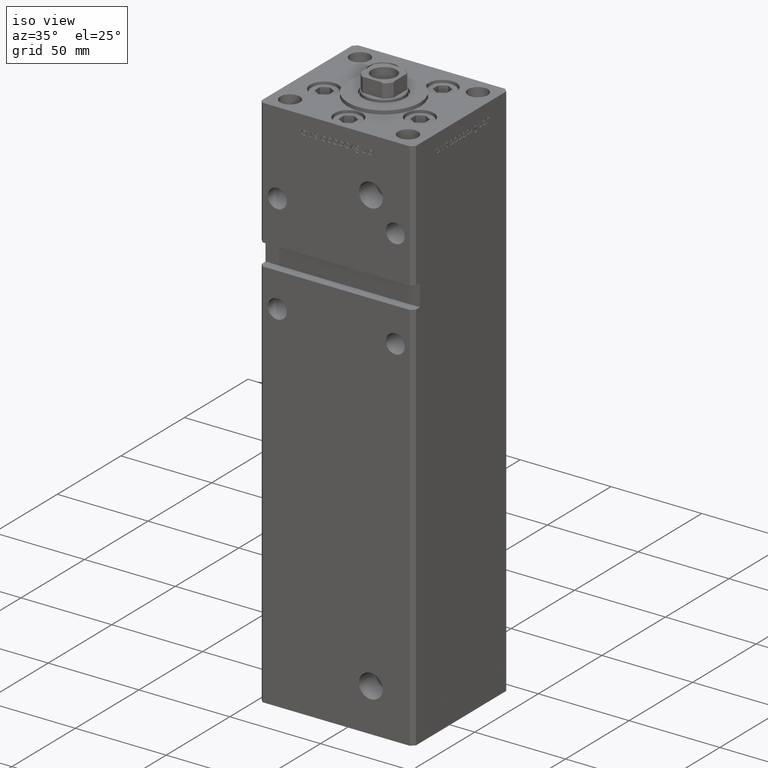
[diagram: clean part render]
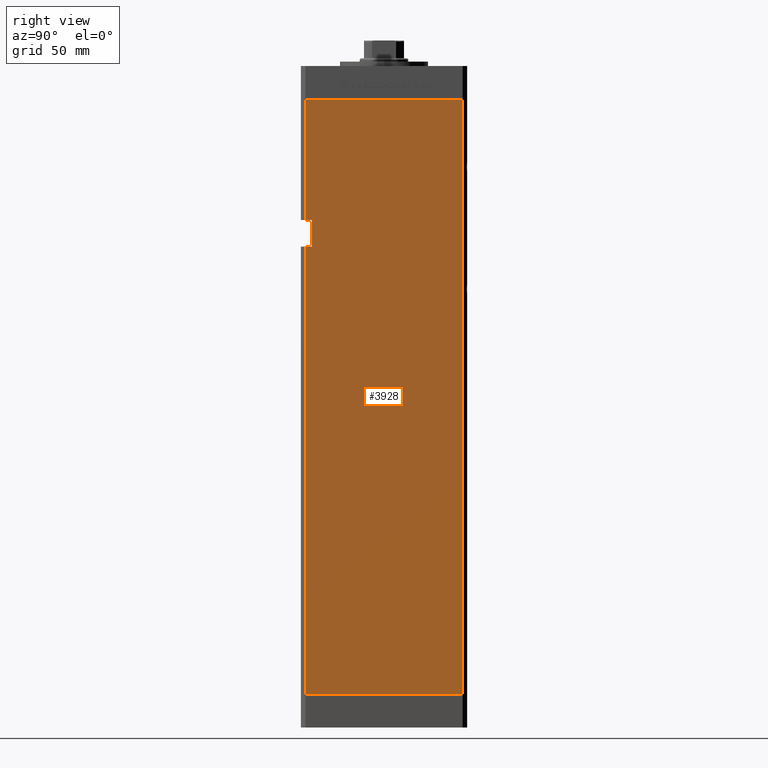
[diagram: tour spotlight — one face highlighted and labeled with its STEP entity id]
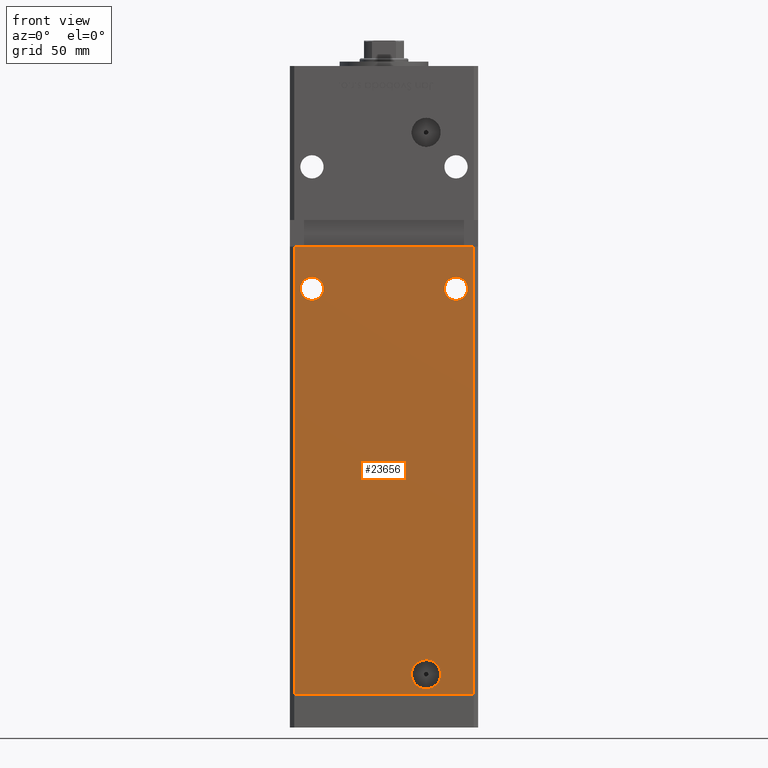
[diagram: tour spotlight — one face highlighted and labeled with its STEP entity id]
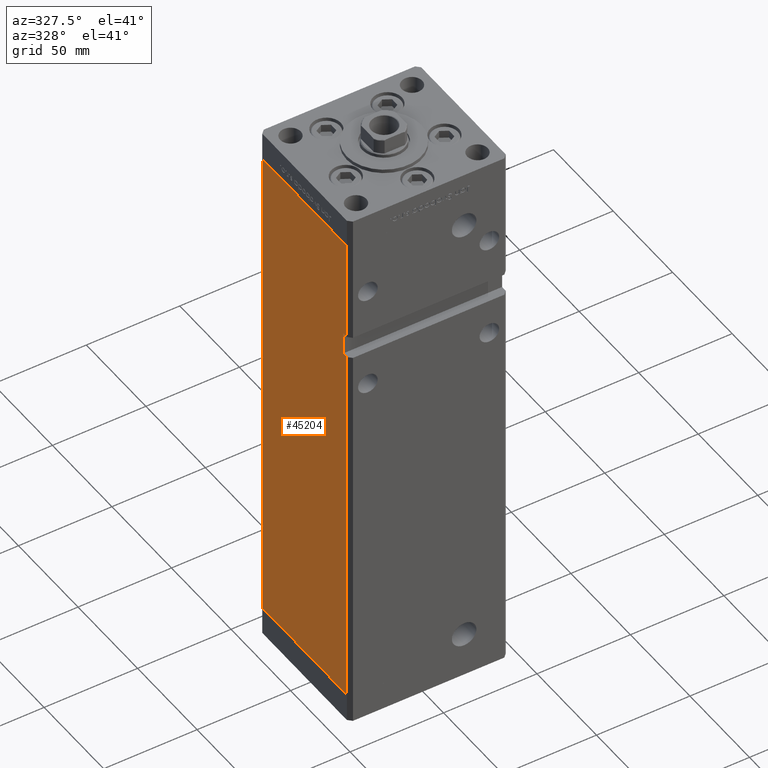
[diagram: tour spotlight — one face highlighted and labeled with its STEP entity id]
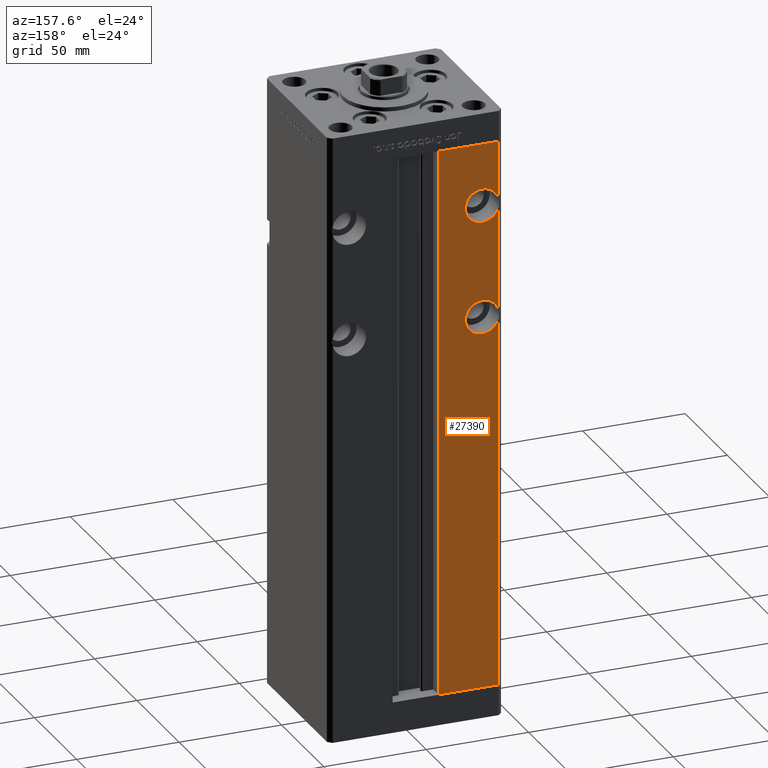
[diagram: tour spotlight — one face highlighted and labeled with its STEP entity id]
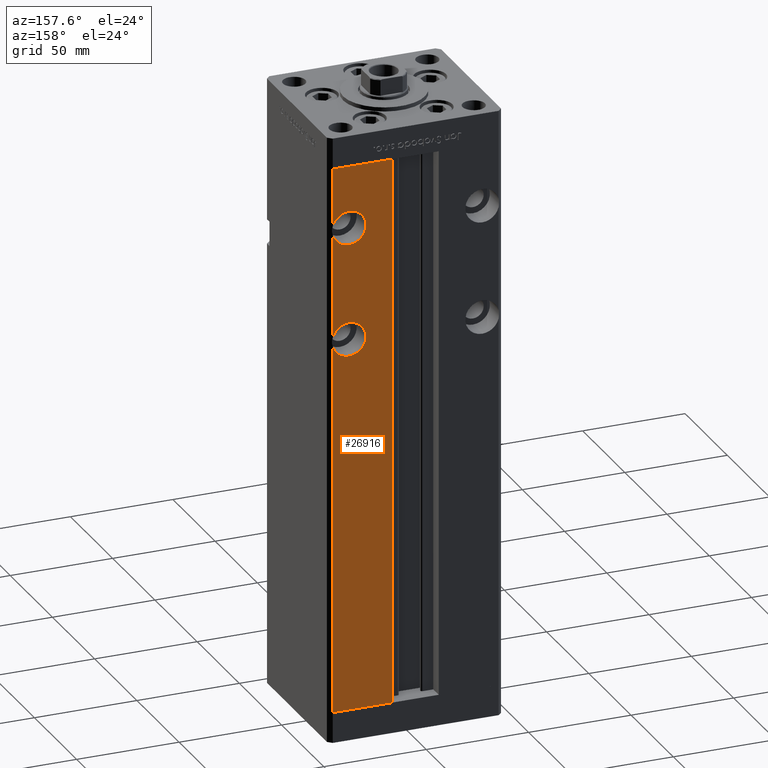
[diagram: tour spotlight — one face highlighted and labeled with its STEP entity id]
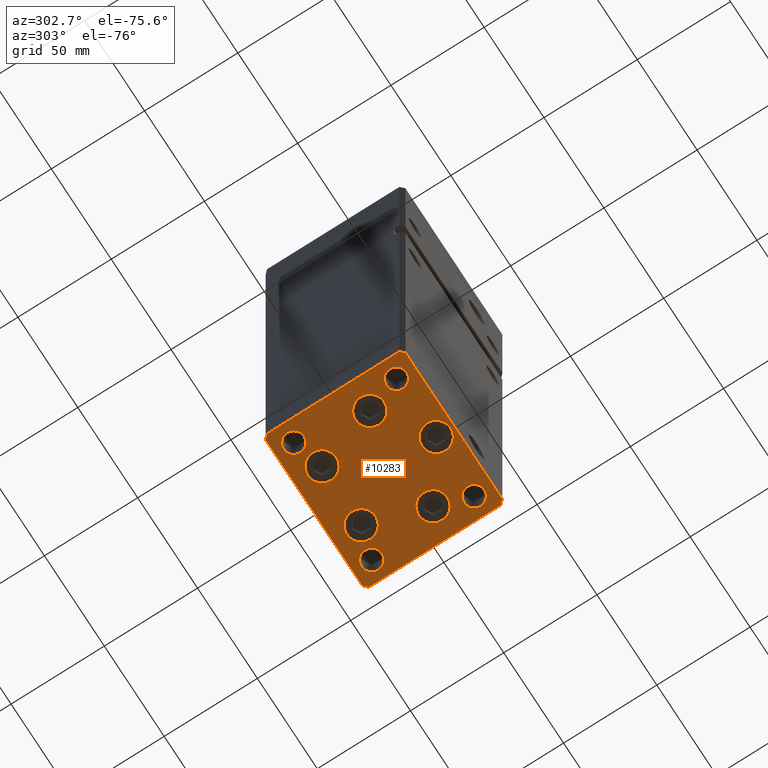
[diagram: tour spotlight — one face highlighted and labeled with its STEP entity id]
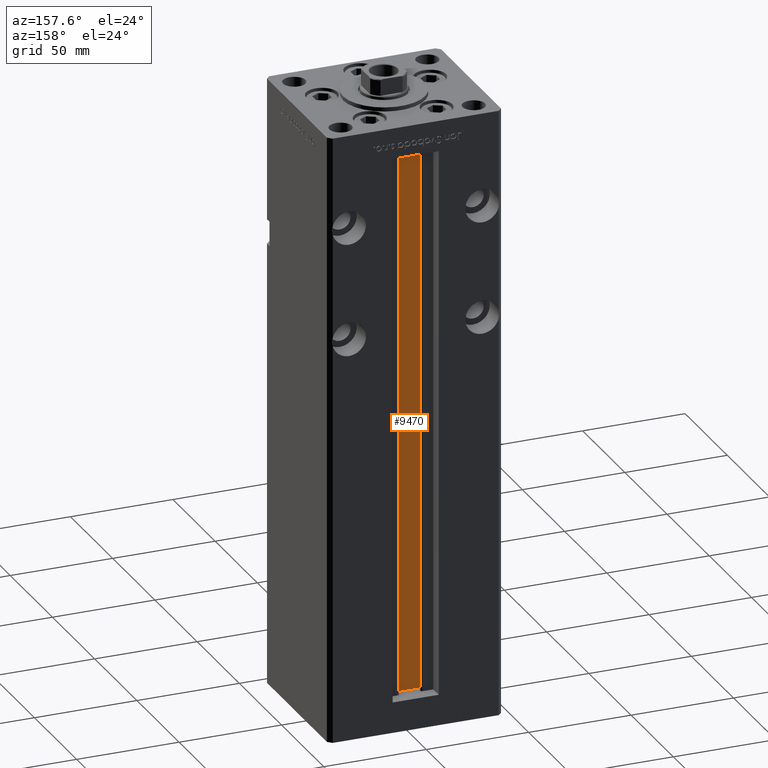
[diagram: tour spotlight — one face highlighted and labeled with its STEP entity id]
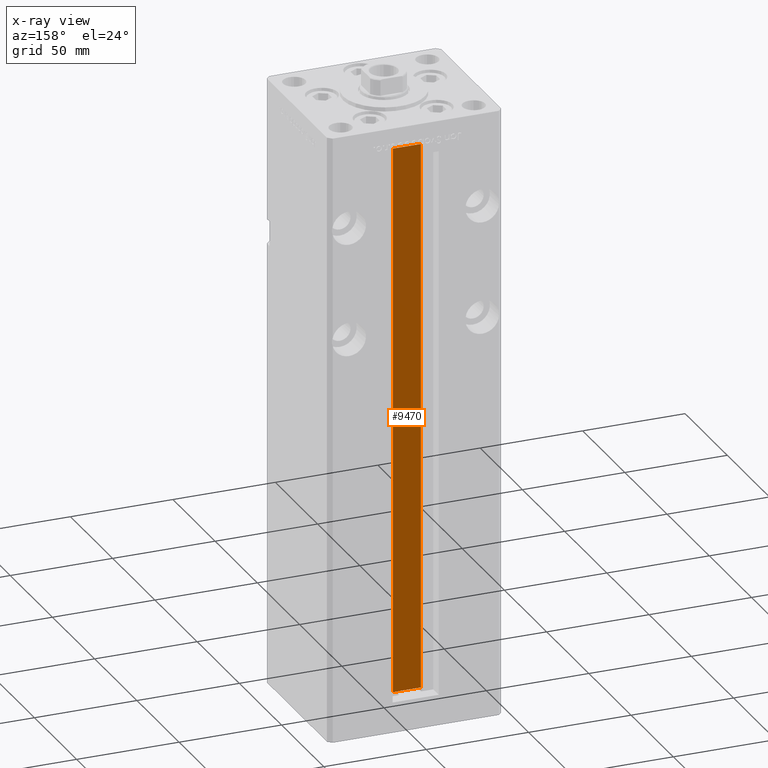
[diagram: x-ray of the same camera — body ghosted, this tour face saturated]
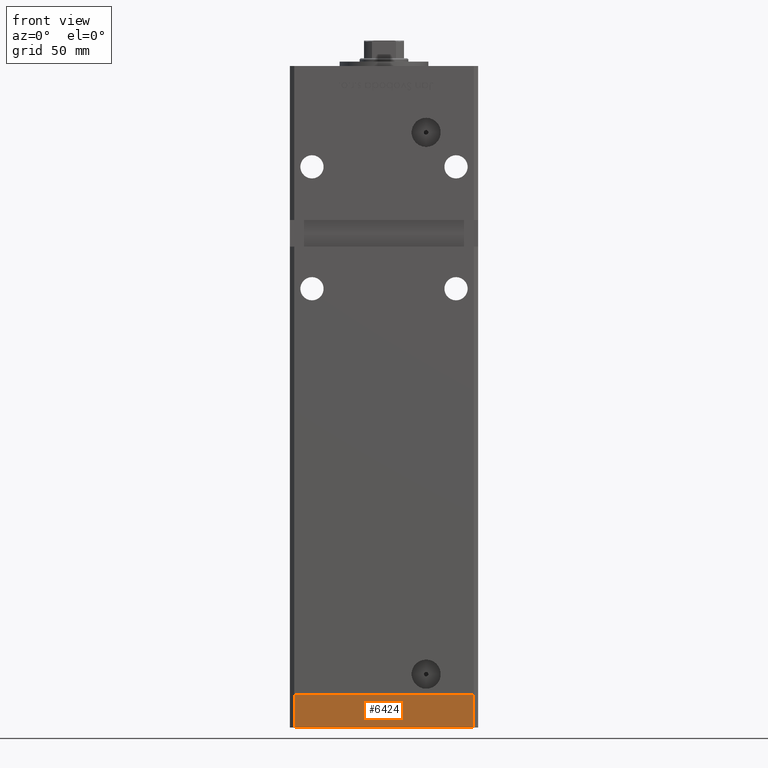
[diagram: tour spotlight — one face highlighted and labeled with its STEP entity id]
A machine part: a face-by-face anatomy tour. The part has 1214 B-rep faces; the first image is the clean iso view, then the 8 largest visible faces are spotlighted one at a time (largest first), each with its STEP entity span.

Face 1 — right view, entity #3928. In plain terms, the highlighted planar face has unit normal (1, -0, 0).
Definition (entity closure, byte-faithful):
#926 = CARTESIAN_POINT ( 'NONE',  ( 42.49999999999998579, -35.50000000000000711, 202.0000000000000000 ) ) ;
#1380 = DIRECTION ( 'NONE',  ( -0.000000000000000000, -1.000000000000000000, -0.000000000000000000 ) ) ;
#1541 = CARTESIAN_POINT ( 'NONE',  ( 42.50000000000001421, 35.50000000000000711, 268.5000000000000000 ) ) ;
#2602 = EDGE_CURVE ( 'NONE', #48309, #48949, #46762, .T. ) ;
#3171 = CARTESIAN_POINT ( 'NONE',  ( 42.49999999999998579, -35.50000000000000711, 268.5000000000000000 ) ) ;
#3928 = ADVANCED_FACE ( 'NONE', ( #41438 ), #41962, .T. ) ;
#4385 = VECTOR ( 'NONE', #53064, 1000.000000000000000 ) ;
#4869 = LINE ( 'NONE', #25616, #9559 ) ;
#5182 = VERTEX_POINT ( 'NONE', #27629 ) ;
#6860 = VERTEX_POINT ( 'NONE', #17675 ) ;
#6946 = AXIS2_PLACEMENT_3D ( 'NONE', #33348, #41177, #53237 ) ;
#9344 = CARTESIAN_POINT ( 'NONE',  ( 42.49999999999998579, -35.50000000000000711, 268.5000000000000000 ) ) ;
#9559 = VECTOR ( 'NONE', #29390, 1000.000000000000000 ) ;
#9714 = CARTESIAN_POINT ( 'NONE',  ( 42.49999999999998579, -32.50000000000000711, 202.0000000000000000 ) ) ;
#9774 = DIRECTION ( 'NONE',  ( -0.000000000000000000, -1.000000000000000000, -0.000000000000000000 ) ) ;
#9864 = LINE ( 'NONE', #33838, #9985 ) ;
#9985 = VECTOR ( 'NONE', #50228, 1000.000000000000000 ) ;
#11357 = CARTESIAN_POINT ( 'NONE',  ( 42.50000000000001421, 35.50000000000000711, 0.000000000000000000 ) ) ;
#12179 = LINE ( 'NONE', #41007, #4385 ) ;
#13454 = EDGE_CURVE ( 'NONE', #33183, #48949, #32619, .T. ) ;
#17293 = VECTOR ( 'NONE', #9774, 1000.000000000000000 ) ;
#17675 = CARTESIAN_POINT ( 'NONE',  ( 42.49999999999998579, -32.50000000000000711, 214.0000000000000284 ) ) ;
#18786 = VERTEX_POINT ( 'NONE', #43687 ) ;
#19386 = ORIENTED_EDGE ( 'NONE', *, *, #13454, .F. ) ;
#19590 = DIRECTION ( 'NONE',  ( -0.000000000000000000, -0.000000000000000000, -1.000000000000000000 ) ) ;
#19612 = CARTESIAN_POINT ( 'NONE',  ( 42.49999999999998579, -35.50000000000000711, 0.000000000000000000 ) ) ;
#25135 = EDGE_CURVE ( 'NONE', #53092, #33183, #9864, .T. ) ;
#25616 = CARTESIAN_POINT ( 'NONE',  ( 42.49999999999998579, -32.50000000000000711, 214.0000000000000284 ) ) ;
#25708 = EDGE_CURVE ( 'NONE', #41970, #18786, #44095, .T. ) ;
#26408 = EDGE_CURVE ( 'NONE', #5182, #48309, #46329, .T. ) ;
#27629 = CARTESIAN_POINT ( 'NONE',  ( 42.49999999999998579, -32.50000000000000000, 202.0000000000000000 ) ) ;
#28328 = DIRECTION ( 'NONE',  ( -3.909236002201255146E-16, -1.000000000000000000, 0.000000000000000000 ) ) ;
#28395 = VECTOR ( 'NONE', #30093, 1000.000000000000000 ) ;
#28703 = VECTOR ( 'NONE', #28328, 1000.000000000000000 ) ;
#29390 = DIRECTION ( 'NONE',  ( -0.000000000000000000, -0.000000000000000000, 1.000000000000000000 ) ) ;
#30093 = DIRECTION ( 'NONE',  ( -0.000000000000000000, -0.000000000000000000, -1.000000000000000000 ) ) ;
#30745 = EDGE_LOOP ( 'NONE', ( #35075, #38020, #19386, #40789, #52886, #43411, #31428, #42368 ) ) ;
#31428 = ORIENTED_EDGE ( 'NONE', *, *, #50620, .F. ) ;
#32619 = LINE ( 'NONE', #11357, #28703 ) ;
#33183 = VERTEX_POINT ( 'NONE', #41837 ) ;
#33348 = CARTESIAN_POINT ( 'NONE',  ( 42.50000000000001421, 35.50000000000000711, 268.5000000000000000 ) ) ;
#33838 = CARTESIAN_POINT ( 'NONE',  ( 42.50000000000001421, 35.50000000000000711, 268.5000000000000000 ) ) ;
#35075 = ORIENTED_EDGE ( 'NONE', *, *, #26408, .T. ) ;
#37950 = CARTESIAN_POINT ( 'NONE',  ( 42.49999999999998579, -35.50000000000000711, 268.5000000000000000 ) ) ;
#38020 = ORIENTED_EDGE ( 'NONE', *, *, #2602, .T. ) ;
#40129 = VECTOR ( 'NONE', #1380, 1000.000000000000000 ) ;
#40789 = ORIENTED_EDGE ( 'NONE', *, *, #25135, .F. ) ;
#41007 = CARTESIAN_POINT ( 'NONE',  ( 42.50000000000001421, 35.50000000000000711, 268.5000000000000000 ) ) ;
#41177 = DIRECTION ( 'NONE',  ( 1.000000000000000000, -3.909236002201255146E-16, 0.000000000000000000 ) ) ;
#41438 = FACE_OUTER_BOUND ( 'NONE', #30745, .T. ) ;
#41837 = CARTESIAN_POINT ( 'NONE',  ( 42.50000000000001421, 35.50000000000000711, 0.000000000000000000 ) ) ;
#41962 = PLANE ( 'NONE',  #6946 ) ;
#41970 = VERTEX_POINT ( 'NONE', #37950 ) ;
#42368 = ORIENTED_EDGE ( 'NONE', *, *, #50824, .F. ) ;
#43411 = ORIENTED_EDGE ( 'NONE', *, *, #25708, .T. ) ;
#43687 = CARTESIAN_POINT ( 'NONE',  ( 42.49999999999998579, -35.50000000000000711, 214.0000000000000284 ) ) ;
#44095 = LINE ( 'NONE', #3171, #48670 ) ;
#45880 = EDGE_CURVE ( 'NONE', #53092, #41970, #12179, .T. ) ;
#46329 = LINE ( 'NONE', #9714, #40129 ) ;
#46655 = LINE ( 'NONE', #50670, #17293 ) ;
#46762 = LINE ( 'NONE', #9344, #28395 ) ;
#48309 = VERTEX_POINT ( 'NONE', #926 ) ;
#48670 = VECTOR ( 'NONE', #19590, 1000.000000000000000 ) ;
#48949 = VERTEX_POINT ( 'NONE', #19612 ) ;
#50228 = DIRECTION ( 'NONE',  ( -0.000000000000000000, -0.000000000000000000, -1.000000000000000000 ) ) ;
#50620 = EDGE_CURVE ( 'NONE', #6860, #18786, #46655, .T. ) ;
#50670 = CARTESIAN_POINT ( 'NONE',  ( 42.49999999999998579, -32.50000000000000711, 214.0000000000000284 ) ) ;
#50824 = EDGE_CURVE ( 'NONE', #5182, #6860, #4869, .T. ) ;
#52886 = ORIENTED_EDGE ( 'NONE', *, *, #45880, .T. ) ;
#53064 = DIRECTION ( 'NONE',  ( -3.909236002201255146E-16, -1.000000000000000000, 0.000000000000000000 ) ) ;
#53092 = VERTEX_POINT ( 'NONE', #1541 ) ;
#53237 = DIRECTION ( 'NONE',  ( 3.909236002201255146E-16, 1.000000000000000000, 0.000000000000000000 ) ) ;

Face 2 — front view, entity #23656. In plain terms, the highlighted planar face has unit normal (0, 1, 0).
Definition (entity closure, byte-faithful):
#57 = DIRECTION ( 'NONE',  ( -0.000000000000000000, -0.000000000000000000, -1.000000000000000000 ) ) ;
#226 = VERTEX_POINT ( 'NONE', #3669 ) ;
#503 = ORIENTED_EDGE ( 'NONE', *, *, #34362, .F. ) ;
#1393 = VERTEX_POINT ( 'NONE', #14848 ) ;
#1457 = CARTESIAN_POINT ( 'NONE',  ( -32.50000000000000000, -37.50000000000000711, 183.0000000000000284 ) ) ;
#2263 = DIRECTION ( 'NONE',  ( 0.000000000000000000, 0.000000000000000000, 1.000000000000000000 ) ) ;
#2303 = EDGE_CURVE ( 'NONE', #51615, #29879, #19772, .T. ) ;
#3122 = VECTOR ( 'NONE', #25178, 1000.000000000000000 ) ;
#3669 = CARTESIAN_POINT ( 'NONE',  ( 40.49999999999998579, -37.50000000000000711, 0.000000000000000000 ) ) ;
#3833 = VERTEX_POINT ( 'NONE', #16125 ) ;
#6824 = EDGE_LOOP ( 'NONE', ( #22187, #20470 ) ) ;
#8387 = ORIENTED_EDGE ( 'NONE', *, *, #9372, .F. ) ;
#8636 = DIRECTION ( 'NONE',  ( 0.000000000000000000, 1.000000000000000000, 0.000000000000000000 ) ) ;
#8908 = DIRECTION ( 'NONE',  ( 0.000000000000000000, 0.000000000000000000, 1.000000000000000000 ) ) ;
#9372 = EDGE_CURVE ( 'NONE', #1393, #41490, #33721, .T. ) ;
#9769 = VECTOR ( 'NONE', #48677, 1000.000000000000000 ) ;
#10252 = DIRECTION ( 'NONE',  ( 0.000000000000000000, 0.000000000000000000, -1.000000000000000000 ) ) ;
#10309 = CIRCLE ( 'NONE', #40407, 6.579999999999998295 ) ;
#11742 = CARTESIAN_POINT ( 'NONE',  ( 32.50000000000000000, -37.50000000000000711, 188.2500000000000284 ) ) ;
#12213 = EDGE_CURVE ( 'NONE', #3833, #34858, #17464, .T. ) ;
#12626 = FACE_BOUND ( 'NONE', #24004, .T. ) ;
#12737 = DIRECTION ( 'NONE',  ( 1.000000000000000000, 0.000000000000000000, 0.000000000000000000 ) ) ;
#12933 = EDGE_CURVE ( 'NONE', #38791, #226, #52956, .T. ) ;
#13225 = CARTESIAN_POINT ( 'NONE',  ( -32.50000000000000000, -37.50000000000000711, 177.7500000000000284 ) ) ;
#13596 = CARTESIAN_POINT ( 'NONE',  ( 32.50000000000000000, -37.50000000000000711, 183.0000000000000284 ) ) ;
#14848 = CARTESIAN_POINT ( 'NONE',  ( 18.99999999999998934, -37.50000000000000711, 15.58000000000000718 ) ) ;
#15507 = AXIS2_PLACEMENT_3D ( 'NONE', #47090, #30958, #42263 ) ;
#15968 = ORIENTED_EDGE ( 'NONE', *, *, #35507, .T. ) ;
#16125 = CARTESIAN_POINT ( 'NONE',  ( 32.50000000000000000, -37.50000000000000711, 177.7500000000000284 ) ) ;
#16616 = EDGE_CURVE ( 'NONE', #29879, #51615, #19200, .T. ) ;
#16818 = CARTESIAN_POINT ( 'NONE',  ( 40.49999999999998579, -37.50000000000000711, 268.5000000000000000 ) ) ;
#17009 = LINE ( 'NONE', #36678, #44775 ) ;
#17464 = CIRCLE ( 'NONE', #18349, 5.250000000000004441 ) ;
#17877 = DIRECTION ( 'NONE',  ( 0.000000000000000000, 1.000000000000000000, 0.000000000000000000 ) ) ;
#18345 = AXIS2_PLACEMENT_3D ( 'NONE', #1457, #17877, #2263 ) ;
#18349 = AXIS2_PLACEMENT_3D ( 'NONE', #13596, #30036, #46432 ) ;
#18545 = DIRECTION ( 'NONE',  ( 0.000000000000000000, -0.000000000000000000, 1.000000000000000000 ) ) ;
#19200 = CIRCLE ( 'NONE', #18345, 5.250000000000004441 ) ;
#19297 = CARTESIAN_POINT ( 'NONE',  ( -40.49999999999998579, -37.50000000000000711, 0.000000000000000000 ) ) ;
#19357 = VERTEX_POINT ( 'NONE', #45460 ) ;
#19772 = CIRCLE ( 'NONE', #15507, 5.250000000000004441 ) ;
#20284 = CARTESIAN_POINT ( 'NONE',  ( 18.99999999999998934, -37.50000000000000711, 2.420000000000009699 ) ) ;
#20470 = ORIENTED_EDGE ( 'NONE', *, *, #2303, .T. ) ;
#22187 = ORIENTED_EDGE ( 'NONE', *, *, #16616, .T. ) ;
#23656 = ADVANCED_FACE ( 'NONE', ( #33626, #25564, #12626, #48963 ), #50018, .F. ) ;
#24004 = EDGE_LOOP ( 'NONE', ( #34182, #8387 ) ) ;
#24667 = CARTESIAN_POINT ( 'NONE',  ( 18.99999999999998934, -37.50000000000000711, 9.000000000000007105 ) ) ;
#25178 = DIRECTION ( 'NONE',  ( -0.000000000000000000, -0.000000000000000000, -1.000000000000000000 ) ) ;
#25564 = FACE_BOUND ( 'NONE', #40113, .T. ) ;
#25698 = ORIENTED_EDGE ( 'NONE', *, *, #12213, .T. ) ;
#25894 = DIRECTION ( 'NONE',  ( 0.000000000000000000, -1.000000000000000000, 0.000000000000000000 ) ) ;
#26072 = EDGE_CURVE ( 'NONE', #51643, #226, #29209, .T. ) ;
#28230 = ORIENTED_EDGE ( 'NONE', *, *, #12933, .T. ) ;
#28520 = ORIENTED_EDGE ( 'NONE', *, *, #26072, .F. ) ;
#29209 = LINE ( 'NONE', #16818, #3122 ) ;
#29468 = AXIS2_PLACEMENT_3D ( 'NONE', #46326, #25894, #10252 ) ;
#29879 = VERTEX_POINT ( 'NONE', #50882 ) ;
#29943 = CIRCLE ( 'NONE', #44574, 5.250000000000004441 ) ;
#30036 = DIRECTION ( 'NONE',  ( 0.000000000000000000, 1.000000000000000000, 0.000000000000000000 ) ) ;
#30958 = DIRECTION ( 'NONE',  ( 0.000000000000000000, 1.000000000000000000, 0.000000000000000000 ) ) ;
#33209 = LINE ( 'NONE', #38046, #49655 ) ;
#33626 = FACE_BOUND ( 'NONE', #6824, .T. ) ;
#33721 = CIRCLE ( 'NONE', #29468, 6.579999999999998295 ) ;
#34182 = ORIENTED_EDGE ( 'NONE', *, *, #42209, .F. ) ;
#34362 = EDGE_CURVE ( 'NONE', #19357, #51643, #33209, .T. ) ;
#34858 = VERTEX_POINT ( 'NONE', #11742 ) ;
#35493 = DIRECTION ( 'NONE',  ( 0.000000000000000000, 1.000000000000000000, 0.000000000000000000 ) ) ;
#35507 = EDGE_CURVE ( 'NONE', #34858, #3833, #29943, .T. ) ;
#36065 = EDGE_LOOP ( 'NONE', ( #28520, #503, #47792, #28230 ) ) ;
#36580 = CARTESIAN_POINT ( 'NONE',  ( -40.49999999999998579, -37.50000000000000711, 0.000000000000000000 ) ) ;
#36678 = CARTESIAN_POINT ( 'NONE',  ( -40.49999999999998579, -37.50000000000000711, 268.5000000000000000 ) ) ;
#38046 = CARTESIAN_POINT ( 'NONE',  ( -42.49999999999998579, -37.50000000000000711, 202.0000000000000000 ) ) ;
#38791 = VERTEX_POINT ( 'NONE', #19297 ) ;
#40113 = EDGE_LOOP ( 'NONE', ( #15968, #25698 ) ) ;
#40407 = AXIS2_PLACEMENT_3D ( 'NONE', #24667, #47872, #41350 ) ;
#41350 = DIRECTION ( 'NONE',  ( 0.000000000000000000, 0.000000000000000000, -1.000000000000000000 ) ) ;
#41490 = VERTEX_POINT ( 'NONE', #20284 ) ;
#42209 = EDGE_CURVE ( 'NONE', #41490, #1393, #10309, .T. ) ;
#42263 = DIRECTION ( 'NONE',  ( 0.000000000000000000, 0.000000000000000000, 1.000000000000000000 ) ) ;
#44574 = AXIS2_PLACEMENT_3D ( 'NONE', #45787, #8636, #8908 ) ;
#44775 = VECTOR ( 'NONE', #57, 1000.000000000000000 ) ;
#44953 = CARTESIAN_POINT ( 'NONE',  ( -40.49999999999998579, -37.50000000000000711, 268.5000000000000000 ) ) ;
#45004 = EDGE_CURVE ( 'NONE', #19357, #38791, #17009, .T. ) ;
#45460 = CARTESIAN_POINT ( 'NONE',  ( -40.49999999999998579, -37.50000000000000711, 202.0000000000000000 ) ) ;
#45787 = CARTESIAN_POINT ( 'NONE',  ( 32.50000000000000000, -37.50000000000000711, 183.0000000000000284 ) ) ;
#46326 = CARTESIAN_POINT ( 'NONE',  ( 18.99999999999998934, -37.50000000000000711, 9.000000000000007105 ) ) ;
#46432 = DIRECTION ( 'NONE',  ( 0.000000000000000000, 0.000000000000000000, 1.000000000000000000 ) ) ;
#47090 = CARTESIAN_POINT ( 'NONE',  ( -32.50000000000000000, -37.50000000000000711, 183.0000000000000284 ) ) ;
#47792 = ORIENTED_EDGE ( 'NONE', *, *, #45004, .T. ) ;
#47872 = DIRECTION ( 'NONE',  ( 0.000000000000000000, -1.000000000000000000, 0.000000000000000000 ) ) ;
#48677 = DIRECTION ( 'NONE',  ( 1.000000000000000000, 0.000000000000000000, 0.000000000000000000 ) ) ;
#48963 = FACE_OUTER_BOUND ( 'NONE', #36065, .T. ) ;
#49655 = VECTOR ( 'NONE', #12737, 1000.000000000000000 ) ;
#50018 = PLANE ( 'NONE',  #51172 ) ;
#50607 = CARTESIAN_POINT ( 'NONE',  ( 40.49999999999998579, -37.50000000000000711, 202.0000000000000000 ) ) ;
#50882 = CARTESIAN_POINT ( 'NONE',  ( -32.50000000000000000, -37.50000000000000711, 188.2500000000000284 ) ) ;
#51172 = AXIS2_PLACEMENT_3D ( 'NONE', #44953, #35493, #18545 ) ;
#51615 = VERTEX_POINT ( 'NONE', #13225 ) ;
#51643 = VERTEX_POINT ( 'NONE', #50607 ) ;
#52956 = LINE ( 'NONE', #36580, #9769 ) ;

Face 3 — auxiliary view, entity #45204. In plain terms, the highlighted planar face has unit normal (1, 0, 0).
Definition (entity closure, byte-faithful):
#1184 = CARTESIAN_POINT ( 'NONE',  ( -42.50000000000001421, 35.50000000000000711, 268.5000000000000000 ) ) ;
#1612 = CARTESIAN_POINT ( 'NONE',  ( -42.49999999999998579, -35.50000000000000711, 268.5000000000000000 ) ) ;
#2019 = DIRECTION ( 'NONE',  ( -5.782411586589351722E-16, 0.000000000000000000, -1.000000000000000000 ) ) ;
#3038 = ORIENTED_EDGE ( 'NONE', *, *, #3961, .T. ) ;
#3344 = ORIENTED_EDGE ( 'NONE', *, *, #30432, .T. ) ;
#3961 = EDGE_CURVE ( 'NONE', #42435, #45569, #13416, .T. ) ;
#4635 = CARTESIAN_POINT ( 'NONE',  ( -42.49999999999998579, -35.49999999999996447, 202.0000000000000000 ) ) ;
#4919 = CARTESIAN_POINT ( 'NONE',  ( -42.49999999999998579, -35.50000000000000711, 0.000000000000000000 ) ) ;
#5491 = DIRECTION ( 'NONE',  ( -0.000000000000000000, -0.000000000000000000, -1.000000000000000000 ) ) ;
#5927 = EDGE_CURVE ( 'NONE', #16774, #39313, #25831, .T. ) ;
#6304 = LINE ( 'NONE', #52544, #34091 ) ;
#6331 = ORIENTED_EDGE ( 'NONE', *, *, #5927, .F. ) ;
#8649 = VECTOR ( 'NONE', #45721, 1000.000000000000000 ) ;
#9290 = VECTOR ( 'NONE', #5491, 1000.000000000000000 ) ;
#10103 = ORIENTED_EDGE ( 'NONE', *, *, #27063, .T. ) ;
#11294 = VECTOR ( 'NONE', #26018, 1000.000000000000000 ) ;
#11495 = VECTOR ( 'NONE', #2019, 1000.000000000000000 ) ;
#11993 = VERTEX_POINT ( 'NONE', #1612 ) ;
#12307 = DIRECTION ( 'NONE',  ( -0.000000000000000000, -1.000000000000000000, -0.000000000000000000 ) ) ;
#12776 = CARTESIAN_POINT ( 'NONE',  ( -42.49999999999998579, -35.50000000000001421, 214.0000000000000284 ) ) ;
#13416 = LINE ( 'NONE', #20707, #8649 ) ;
#13690 = CARTESIAN_POINT ( 'NONE',  ( -42.49999999999998579, -35.50000000000000711, 268.5000000000000000 ) ) ;
#16204 = ORIENTED_EDGE ( 'NONE', *, *, #50157, .F. ) ;
#16774 = VERTEX_POINT ( 'NONE', #4635 ) ;
#17651 = EDGE_CURVE ( 'NONE', #42435, #48783, #38906, .T. ) ;
#18407 = EDGE_CURVE ( 'NONE', #34029, #11993, #37902, .T. ) ;
#20707 = CARTESIAN_POINT ( 'NONE',  ( -42.49999999999998579, -32.50000000000000711, 214.0000000000000284 ) ) ;
#21703 = CARTESIAN_POINT ( 'NONE',  ( -42.49999999999998579, -35.50000000000000711, 268.5000000000000000 ) ) ;
#22069 = CARTESIAN_POINT ( 'NONE',  ( -42.49999999999998579, -32.50000000000000711, 202.0000000000000000 ) ) ;
#22750 = DIRECTION ( 'NONE',  ( 3.909236002201255146E-16, -1.000000000000000000, 0.000000000000000000 ) ) ;
#24712 = LINE ( 'NONE', #25509, #39266 ) ;
#24960 = EDGE_CURVE ( 'NONE', #48783, #16774, #24712, .T. ) ;
#25509 = CARTESIAN_POINT ( 'NONE',  ( -42.49999999999998579, -32.50000000000000711, 202.0000000000000000 ) ) ;
#25831 = LINE ( 'NONE', #13690, #52515 ) ;
#25883 = AXIS2_PLACEMENT_3D ( 'NONE', #35566, #27501, #43647 ) ;
#26018 = DIRECTION ( 'NONE',  ( -0.000000000000000000, -0.000000000000000000, -1.000000000000000000 ) ) ;
#26238 = LINE ( 'NONE', #1184, #9290 ) ;
#26701 = PLANE ( 'NONE',  #25883 ) ;
#26766 = VERTEX_POINT ( 'NONE', #27439 ) ;
#26976 = FACE_OUTER_BOUND ( 'NONE', #32433, .T. ) ;
#27063 = EDGE_CURVE ( 'NONE', #26766, #39313, #6304, .T. ) ;
#27439 = CARTESIAN_POINT ( 'NONE',  ( -42.50000000000001421, 35.50000000000000711, 0.000000000000000000 ) ) ;
#27501 = DIRECTION ( 'NONE',  ( 1.000000000000000000, 3.909236002201255146E-16, -0.000000000000000000 ) ) ;
#30432 = EDGE_CURVE ( 'NONE', #34029, #26766, #26238, .T. ) ;
#32433 = EDGE_LOOP ( 'NONE', ( #6331, #41051, #49848, #3038, #16204, #34152, #3344, #10103 ) ) ;
#34029 = VERTEX_POINT ( 'NONE', #36776 ) ;
#34055 = CARTESIAN_POINT ( 'NONE',  ( -42.49999999999998579, -32.50000000000000711, 214.0000000000000284 ) ) ;
#34091 = VECTOR ( 'NONE', #22750, 1000.000000000000000 ) ;
#34152 = ORIENTED_EDGE ( 'NONE', *, *, #18407, .F. ) ;
#35566 = CARTESIAN_POINT ( 'NONE',  ( -42.50000000000001421, 35.50000000000000711, 268.5000000000000000 ) ) ;
#36776 = CARTESIAN_POINT ( 'NONE',  ( -42.50000000000001421, 35.50000000000000711, 268.5000000000000000 ) ) ;
#37633 = DIRECTION ( 'NONE',  ( 3.909236002201255146E-16, -1.000000000000000000, 0.000000000000000000 ) ) ;
#37902 = LINE ( 'NONE', #49720, #39876 ) ;
#38906 = LINE ( 'NONE', #34055, #11495 ) ;
#39266 = VECTOR ( 'NONE', #12307, 1000.000000000000000 ) ;
#39313 = VERTEX_POINT ( 'NONE', #4919 ) ;
#39709 = CARTESIAN_POINT ( 'NONE',  ( -42.49999999999998579, -32.50000000000000711, 214.0000000000000284 ) ) ;
#39876 = VECTOR ( 'NONE', #37633, 1000.000000000000000 ) ;
#41051 = ORIENTED_EDGE ( 'NONE', *, *, #24960, .F. ) ;
#41372 = LINE ( 'NONE', #21703, #11294 ) ;
#42435 = VERTEX_POINT ( 'NONE', #39709 ) ;
#43647 = DIRECTION ( 'NONE',  ( -3.909236002201255146E-16, 1.000000000000000000, 0.000000000000000000 ) ) ;
#45204 = ADVANCED_FACE ( 'NONE', ( #26976 ), #26701, .F. ) ;
#45569 = VERTEX_POINT ( 'NONE', #12776 ) ;
#45721 = DIRECTION ( 'NONE',  ( -0.000000000000000000, -1.000000000000000000, -0.000000000000000000 ) ) ;
#48783 = VERTEX_POINT ( 'NONE', #22069 ) ;
#49720 = CARTESIAN_POINT ( 'NONE',  ( -42.50000000000001421, 35.50000000000000711, 268.5000000000000000 ) ) ;
#49848 = ORIENTED_EDGE ( 'NONE', *, *, #17651, .F. ) ;
#50157 = EDGE_CURVE ( 'NONE', #11993, #45569, #41372, .T. ) ;
#51094 = DIRECTION ( 'NONE',  ( -0.000000000000000000, -0.000000000000000000, -1.000000000000000000 ) ) ;
#52515 = VECTOR ( 'NONE', #51094, 1000.000000000000000 ) ;
#52544 = CARTESIAN_POINT ( 'NONE',  ( -42.50000000000001421, 35.50000000000000711, 0.000000000000000000 ) ) ;

Face 4 — auxiliary view, entity #27390. In plain terms, the highlighted planar face has unit normal (0, -1, 0).
Definition (entity closure, byte-faithful):
#682 = CIRCLE ( 'NONE', #17869, 8.250000000000007105 ) ;
#893 = CIRCLE ( 'NONE', #7770, 8.250000000000007105 ) ;
#1498 = AXIS2_PLACEMENT_3D ( 'NONE', #50802, #18259, #33879 ) ;
#1697 = DIRECTION ( 'NONE',  ( 0.000000000000000000, 0.000000000000000000, -1.000000000000000000 ) ) ;
#2287 = CIRCLE ( 'NONE', #16064, 8.250000000000007105 ) ;
#3094 = VERTEX_POINT ( 'NONE', #11410 ) ;
#3219 = ORIENTED_EDGE ( 'NONE', *, *, #3429, .T. ) ;
#3429 = EDGE_CURVE ( 'NONE', #34983, #6072, #16907, .T. ) ;
#3776 = VECTOR ( 'NONE', #24427, 1000.000000000000000 ) ;
#4127 = VERTEX_POINT ( 'NONE', #24163 ) ;
#4210 = LINE ( 'NONE', #40315, #3776 ) ;
#4389 = EDGE_CURVE ( 'NONE', #30986, #49115, #893, .T. ) ;
#6072 = VERTEX_POINT ( 'NONE', #44360 ) ;
#6119 = VECTOR ( 'NONE', #27904, 1000.000000000000000 ) ;
#6260 = DIRECTION ( 'NONE',  ( -0.000000000000000000, -0.000000000000000000, -1.000000000000000000 ) ) ;
#7083 = LINE ( 'NONE', #40728, #23089 ) ;
#7770 = AXIS2_PLACEMENT_3D ( 'NONE', #45862, #8979, #20580 ) ;
#7997 = DIRECTION ( 'NONE',  ( 0.000000000000000000, 1.000000000000000000, 0.000000000000000000 ) ) ;
#8434 = ORIENTED_EDGE ( 'NONE', *, *, #8527, .F. ) ;
#8527 = EDGE_CURVE ( 'NONE', #12407, #4127, #19085, .T. ) ;
#8623 = CARTESIAN_POINT ( 'NONE',  ( -32.50000000000000000, 37.50000000000000000, 246.2500000000000284 ) ) ;
#8979 = DIRECTION ( 'NONE',  ( 0.000000000000000000, 1.000000000000000000, 0.000000000000000000 ) ) ;
#9248 = CIRCLE ( 'NONE', #1498, 8.250000000000007105 ) ;
#10565 = LINE ( 'NONE', #23489, #21030 ) ;
#11410 = CARTESIAN_POINT ( 'NONE',  ( -40.50000000000000711, 37.50000000000000000, 240.0155644370746302 ) ) ;
#11973 = LINE ( 'NONE', #31421, #6119 ) ;
#12407 = VERTEX_POINT ( 'NONE', #15205 ) ;
#13116 = CARTESIAN_POINT ( 'NONE',  ( -32.50000000000000000, 37.50000000000000000, 174.7500000000000284 ) ) ;
#14369 = VERTEX_POINT ( 'NONE', #23832 ) ;
#15205 = CARTESIAN_POINT ( 'NONE',  ( -32.50000000000000000, 37.50000000000000000, 229.7500000000000000 ) ) ;
#15926 = ORIENTED_EDGE ( 'NONE', *, *, #4389, .F. ) ;
#16064 = AXIS2_PLACEMENT_3D ( 'NONE', #31348, #47991, #39941 ) ;
#16601 = CARTESIAN_POINT ( 'NONE',  ( -40.50000000000000711, 37.50000000000000000, 180.9844355629253982 ) ) ;
#16907 = LINE ( 'NONE', #49988, #43039 ) ;
#17869 = AXIS2_PLACEMENT_3D ( 'NONE', #38312, #26477, #1697 ) ;
#18259 = DIRECTION ( 'NONE',  ( 0.000000000000000000, 1.000000000000000000, 0.000000000000000000 ) ) ;
#19085 = CIRCLE ( 'NONE', #44028, 8.250000000000007105 ) ;
#19115 = ORIENTED_EDGE ( 'NONE', *, *, #48165, .F. ) ;
#19663 = EDGE_CURVE ( 'NONE', #42873, #6072, #4210, .T. ) ;
#19840 = CIRCLE ( 'NONE', #48178, 8.250000000000007105 ) ;
#20056 = VERTEX_POINT ( 'NONE', #49387 ) ;
#20580 = DIRECTION ( 'NONE',  ( 0.000000000000000000, 0.000000000000000000, 1.000000000000000000 ) ) ;
#20869 = CARTESIAN_POINT ( 'NONE',  ( -40.50000000000000711, 37.50000000000000000, 268.5000000000000000 ) ) ;
#21030 = VECTOR ( 'NONE', #6260, 1000.000000000000000 ) ;
#21188 = EDGE_CURVE ( 'NONE', #4127, #20056, #10565, .T. ) ;
#21360 = VERTEX_POINT ( 'NONE', #8623 ) ;
#21447 = CARTESIAN_POINT ( 'NONE',  ( -32.50000000000000000, 37.50000000000000000, 183.0000000000000284 ) ) ;
#22115 = ORIENTED_EDGE ( 'NONE', *, *, #45471, .T. ) ;
#23089 = VECTOR ( 'NONE', #27826, 1000.000000000000000 ) ;
#23212 = DIRECTION ( 'NONE',  ( 0.000000000000000000, 1.000000000000000000, -0.000000000000000000 ) ) ;
#23489 = CARTESIAN_POINT ( 'NONE',  ( -40.50000000000000711, 37.50000000000000000, 268.5000000000000000 ) ) ;
#23725 = CARTESIAN_POINT ( 'NONE',  ( -11.24999999999999822, 37.50000000000000000, 268.5000000000000000 ) ) ;
#23832 = CARTESIAN_POINT ( 'NONE',  ( -40.50000000000000711, 37.50000000000000000, 0.000000000000000000 ) ) ;
#24163 = CARTESIAN_POINT ( 'NONE',  ( -40.50000000000000711, 37.50000000000000000, 235.9844355629253982 ) ) ;
#24427 = DIRECTION ( 'NONE',  ( -0.000000000000000000, -0.000000000000000000, 1.000000000000000000 ) ) ;
#24692 = AXIS2_PLACEMENT_3D ( 'NONE', #23725, #39352, #26712 ) ;
#25375 = ORIENTED_EDGE ( 'NONE', *, *, #34425, .F. ) ;
#26204 = EDGE_CURVE ( 'NONE', #21360, #12407, #2287, .T. ) ;
#26477 = DIRECTION ( 'NONE',  ( 0.000000000000000000, 1.000000000000000000, -0.000000000000000000 ) ) ;
#26526 = EDGE_LOOP ( 'NONE', ( #49671, #8434, #46345, #25375, #19115, #3219, #34694, #22115, #51421, #37947, #15926, #47415 ) ) ;
#26712 = DIRECTION ( 'NONE',  ( 0.000000000000000000, -0.000000000000000000, -1.000000000000000000 ) ) ;
#26725 = DIRECTION ( 'NONE',  ( 0.000000000000000000, 0.000000000000000000, -1.000000000000000000 ) ) ;
#26819 = CARTESIAN_POINT ( 'NONE',  ( -40.50000000000000711, 37.50000000000000000, 268.5000000000000000 ) ) ;
#27390 = ADVANCED_FACE ( 'NONE', ( #40138 ), #47678, .F. ) ;
#27826 = DIRECTION ( 'NONE',  ( -0.000000000000000000, -0.000000000000000000, -1.000000000000000000 ) ) ;
#27904 = DIRECTION ( 'NONE',  ( -1.000000000000000000, 0.000000000000000000, 0.000000000000000000 ) ) ;
#29229 = VERTEX_POINT ( 'NONE', #16601 ) ;
#30596 = EDGE_CURVE ( 'NONE', #29229, #14369, #7083, .T. ) ;
#30986 = VERTEX_POINT ( 'NONE', #51593 ) ;
#31348 = CARTESIAN_POINT ( 'NONE',  ( -32.50000000000000000, 37.50000000000000000, 238.0000000000000284 ) ) ;
#31421 = CARTESIAN_POINT ( 'NONE',  ( -11.24999999999999822, 37.50000000000000000, 0.000000000000000000 ) ) ;
#32618 = EDGE_CURVE ( 'NONE', #49115, #29229, #9248, .T. ) ;
#33033 = DIRECTION ( 'NONE',  ( 0.000000000000000000, 0.000000000000000000, 1.000000000000000000 ) ) ;
#33250 = DIRECTION ( 'NONE',  ( -0.000000000000000000, -0.000000000000000000, -1.000000000000000000 ) ) ;
#33879 = DIRECTION ( 'NONE',  ( 0.000000000000000000, 0.000000000000000000, 1.000000000000000000 ) ) ;
#34425 = EDGE_CURVE ( 'NONE', #3094, #21360, #682, .T. ) ;
#34565 = VECTOR ( 'NONE', #33250, 1000.000000000000000 ) ;
#34694 = ORIENTED_EDGE ( 'NONE', *, *, #19663, .F. ) ;
#34983 = VERTEX_POINT ( 'NONE', #26819 ) ;
#37947 = ORIENTED_EDGE ( 'NONE', *, *, #32618, .F. ) ;
#38312 = CARTESIAN_POINT ( 'NONE',  ( -32.50000000000000000, 37.50000000000000000, 238.0000000000000284 ) ) ;
#39352 = DIRECTION ( 'NONE',  ( 0.000000000000000000, -1.000000000000000000, 0.000000000000000000 ) ) ;
#39941 = DIRECTION ( 'NONE',  ( 0.000000000000000000, 0.000000000000000000, -1.000000000000000000 ) ) ;
#40138 = FACE_OUTER_BOUND ( 'NONE', #26526, .T. ) ;
#40315 = CARTESIAN_POINT ( 'NONE',  ( -11.24999999999999822, 37.50000000000000000, 0.000000000000000000 ) ) ;
#40728 = CARTESIAN_POINT ( 'NONE',  ( -40.50000000000000711, 37.50000000000000000, 268.5000000000000000 ) ) ;
#42873 = VERTEX_POINT ( 'NONE', #52232 ) ;
#43039 = VECTOR ( 'NONE', #49461, 1000.000000000000000 ) ;
#43920 = CARTESIAN_POINT ( 'NONE',  ( -32.50000000000000000, 37.50000000000000000, 238.0000000000000284 ) ) ;
#44028 = AXIS2_PLACEMENT_3D ( 'NONE', #43920, #23212, #26725 ) ;
#44256 = EDGE_CURVE ( 'NONE', #20056, #30986, #19840, .T. ) ;
#44360 = CARTESIAN_POINT ( 'NONE',  ( -11.24999999999999822, 37.50000000000000000, 268.5000000000000000 ) ) ;
#45471 = EDGE_CURVE ( 'NONE', #42873, #14369, #11973, .T. ) ;
#45862 = CARTESIAN_POINT ( 'NONE',  ( -32.50000000000000000, 37.50000000000000000, 183.0000000000000284 ) ) ;
#46345 = ORIENTED_EDGE ( 'NONE', *, *, #26204, .F. ) ;
#47415 = ORIENTED_EDGE ( 'NONE', *, *, #44256, .F. ) ;
#47678 = PLANE ( 'NONE',  #24692 ) ;
#47991 = DIRECTION ( 'NONE',  ( 0.000000000000000000, 1.000000000000000000, -0.000000000000000000 ) ) ;
#48165 = EDGE_CURVE ( 'NONE', #34983, #3094, #48851, .T. ) ;
#48178 = AXIS2_PLACEMENT_3D ( 'NONE', #21447, #7997, #33033 ) ;
#48851 = LINE ( 'NONE', #20869, #34565 ) ;
#49115 = VERTEX_POINT ( 'NONE', #13116 ) ;
#49387 = CARTESIAN_POINT ( 'NONE',  ( -40.50000000000000711, 37.50000000000000000, 185.0155644370746586 ) ) ;
#49461 = DIRECTION ( 'NONE',  ( 1.000000000000000000, 0.000000000000000000, 0.000000000000000000 ) ) ;
#49671 = ORIENTED_EDGE ( 'NONE', *, *, #21188, .F. ) ;
#49988 = CARTESIAN_POINT ( 'NONE',  ( -11.24999999999999822, 37.50000000000000000, 268.5000000000000000 ) ) ;
#50802 = CARTESIAN_POINT ( 'NONE',  ( -32.50000000000000000, 37.50000000000000000, 183.0000000000000284 ) ) ;
#51421 = ORIENTED_EDGE ( 'NONE', *, *, #30596, .F. ) ;
#51593 = CARTESIAN_POINT ( 'NONE',  ( -32.50000000000000000, 37.50000000000000000, 191.2500000000000284 ) ) ;
#52232 = CARTESIAN_POINT ( 'NONE',  ( -11.24999999999999822, 37.50000000000000000, 0.000000000000000000 ) ) ;

Face 5 — auxiliary view, entity #26916. In plain terms, the highlighted planar face has unit normal (0, -1, 0).
Definition (entity closure, byte-faithful):
#1117 = CARTESIAN_POINT ( 'NONE',  ( 40.50000000000000711, 37.50000000000000000, 185.0155644370746302 ) ) ;
#1424 = CARTESIAN_POINT ( 'NONE',  ( 40.50000000000000711, 37.50000000000000000, 268.5000000000000000 ) ) ;
#1735 = PLANE ( 'NONE',  #41864 ) ;
#1768 = DIRECTION ( 'NONE',  ( -0.000000000000000000, -0.000000000000000000, -1.000000000000000000 ) ) ;
#2509 = EDGE_CURVE ( 'NONE', #27544, #33975, #21474, .T. ) ;
#3677 = VERTEX_POINT ( 'NONE', #8474 ) ;
#4274 = CIRCLE ( 'NONE', #21453, 8.250000000000007105 ) ;
#4518 = DIRECTION ( 'NONE',  ( -0.000000000000000000, -0.000000000000000000, 1.000000000000000000 ) ) ;
#4769 = CARTESIAN_POINT ( 'NONE',  ( 40.50000000000000711, 37.50000000000000000, 240.0155644370746586 ) ) ;
#5286 = DIRECTION ( 'NONE',  ( 0.000000000000000000, 1.000000000000000000, 0.000000000000000000 ) ) ;
#5373 = ORIENTED_EDGE ( 'NONE', *, *, #44402, .F. ) ;
#5402 = DIRECTION ( 'NONE',  ( 0.000000000000000000, 1.000000000000000000, -0.000000000000000000 ) ) ;
#5553 = DIRECTION ( 'NONE',  ( 0.000000000000000000, 0.000000000000000000, 1.000000000000000000 ) ) ;
#5763 = FACE_OUTER_BOUND ( 'NONE', #37324, .T. ) ;
#6507 = ORIENTED_EDGE ( 'NONE', *, *, #42305, .F. ) ;
#6778 = CARTESIAN_POINT ( 'NONE',  ( 40.50000000000000711, 37.50000000000000000, 180.9844355629254267 ) ) ;
#8041 = VERTEX_POINT ( 'NONE', #4769 ) ;
#8448 = CIRCLE ( 'NONE', #11892, 8.250000000000007105 ) ;
#8474 = CARTESIAN_POINT ( 'NONE',  ( 40.50000000000000711, 37.50000000000000000, 268.5000000000000000 ) ) ;
#8520 = VERTEX_POINT ( 'NONE', #6778 ) ;
#9454 = VECTOR ( 'NONE', #4518, 1000.000000000000000 ) ;
#9950 = LINE ( 'NONE', #13196, #20080 ) ;
#10374 = CARTESIAN_POINT ( 'NONE',  ( 40.50000000000000711, 37.50000000000000000, 268.5000000000000000 ) ) ;
#10623 = EDGE_CURVE ( 'NONE', #33975, #3677, #44365, .T. ) ;
#11892 = AXIS2_PLACEMENT_3D ( 'NONE', #14554, #5402, #38787 ) ;
#12041 = VERTEX_POINT ( 'NONE', #49397 ) ;
#12127 = DIRECTION ( 'NONE',  ( 0.000000000000000000, 1.000000000000000000, -0.000000000000000000 ) ) ;
#13196 = CARTESIAN_POINT ( 'NONE',  ( -11.24999999999999822, 37.50000000000000000, 0.000000000000000000 ) ) ;
#13206 = DIRECTION ( 'NONE',  ( 0.000000000000000000, 1.000000000000000000, 0.000000000000000000 ) ) ;
#13576 = DIRECTION ( 'NONE',  ( 0.000000000000000000, -0.000000000000000000, -1.000000000000000000 ) ) ;
#13702 = ORIENTED_EDGE ( 'NONE', *, *, #40036, .T. ) ;
#14419 = AXIS2_PLACEMENT_3D ( 'NONE', #21015, #12127, #44713 ) ;
#14554 = CARTESIAN_POINT ( 'NONE',  ( 32.50000000000000000, 37.50000000000000000, 183.0000000000000284 ) ) ;
#14855 = ORIENTED_EDGE ( 'NONE', *, *, #2509, .T. ) ;
#15858 = ORIENTED_EDGE ( 'NONE', *, *, #45727, .T. ) ;
#15899 = VERTEX_POINT ( 'NONE', #46260 ) ;
#16049 = CARTESIAN_POINT ( 'NONE',  ( 32.50000000000000000, 37.50000000000000000, 246.2500000000000284 ) ) ;
#16816 = VERTEX_POINT ( 'NONE', #1117 ) ;
#18037 = DIRECTION ( 'NONE',  ( -1.000000000000000000, 0.000000000000000000, 0.000000000000000000 ) ) ;
#18124 = EDGE_CURVE ( 'NONE', #21554, #27544, #9950, .T. ) ;
#18144 = ORIENTED_EDGE ( 'NONE', *, *, #35607, .F. ) ;
#18170 = CARTESIAN_POINT ( 'NONE',  ( 32.50000000000000000, 37.50000000000000000, 238.0000000000000284 ) ) ;
#18968 = AXIS2_PLACEMENT_3D ( 'NONE', #38944, #5286, #5553 ) ;
#19368 = ORIENTED_EDGE ( 'NONE', *, *, #33461, .F. ) ;
#19563 = CARTESIAN_POINT ( 'NONE',  ( 11.24999999999999112, 37.50000000000000000, 268.5000000000000000 ) ) ;
#19790 = DIRECTION ( 'NONE',  ( 0.000000000000000000, 0.000000000000000000, -1.000000000000000000 ) ) ;
#20080 = VECTOR ( 'NONE', #18037, 1000.000000000000000 ) ;
#20327 = DIRECTION ( 'NONE',  ( 0.000000000000000000, 1.000000000000000000, -0.000000000000000000 ) ) ;
#20363 = CARTESIAN_POINT ( 'NONE',  ( 40.50000000000000711, 37.50000000000000000, 0.000000000000000000 ) ) ;
#20590 = VERTEX_POINT ( 'NONE', #28768 ) ;
#21015 = CARTESIAN_POINT ( 'NONE',  ( 32.50000000000000000, 37.50000000000000000, 183.0000000000000284 ) ) ;
#21291 = ORIENTED_EDGE ( 'NONE', *, *, #18124, .T. ) ;
#21453 = AXIS2_PLACEMENT_3D ( 'NONE', #18170, #42675, #45900 ) ;
#21474 = LINE ( 'NONE', #53207, #9454 ) ;
#21554 = VERTEX_POINT ( 'NONE', #20363 ) ;
#22184 = EDGE_CURVE ( 'NONE', #15899, #34006, #35686, .T. ) ;
#23988 = CARTESIAN_POINT ( 'NONE',  ( 11.24999999999999822, 37.50000000000000000, 0.000000000000000000 ) ) ;
#25000 = CIRCLE ( 'NONE', #18968, 8.250000000000007105 ) ;
#25878 = ORIENTED_EDGE ( 'NONE', *, *, #22184, .F. ) ;
#25945 = DIRECTION ( 'NONE',  ( -0.000000000000000000, -0.000000000000000000, -1.000000000000000000 ) ) ;
#26145 = CARTESIAN_POINT ( 'NONE',  ( 32.50000000000000000, 37.50000000000000000, 238.0000000000000284 ) ) ;
#26916 = ADVANCED_FACE ( 'NONE', ( #5763 ), #1735, .F. ) ;
#27396 = AXIS2_PLACEMENT_3D ( 'NONE', #32436, #20327, #19790 ) ;
#27544 = VERTEX_POINT ( 'NONE', #23988 ) ;
#28481 = EDGE_CURVE ( 'NONE', #8520, #21554, #38649, .T. ) ;
#28768 = CARTESIAN_POINT ( 'NONE',  ( 32.50000000000000000, 37.50000000000000000, 191.2500000000000284 ) ) ;
#29948 = CIRCLE ( 'NONE', #27396, 8.250000000000007105 ) ;
#30293 = EDGE_CURVE ( 'NONE', #8520, #12041, #29948, .T. ) ;
#31032 = ORIENTED_EDGE ( 'NONE', *, *, #30293, .F. ) ;
#31478 = CARTESIAN_POINT ( 'NONE',  ( -11.24999999999999822, 37.50000000000000000, 268.5000000000000000 ) ) ;
#32135 = LINE ( 'NONE', #43983, #51679 ) ;
#32436 = CARTESIAN_POINT ( 'NONE',  ( 32.50000000000000000, 37.50000000000000000, 183.0000000000000284 ) ) ;
#33461 = EDGE_CURVE ( 'NONE', #12041, #20590, #53027, .T. ) ;
#33975 = VERTEX_POINT ( 'NONE', #19563 ) ;
#34001 = LINE ( 'NONE', #1424, #44622 ) ;
#34006 = VERTEX_POINT ( 'NONE', #16049 ) ;
#34311 = CARTESIAN_POINT ( 'NONE',  ( -11.24999999999999822, 37.50000000000000000, 268.5000000000000000 ) ) ;
#35607 = EDGE_CURVE ( 'NONE', #20590, #16816, #8448, .T. ) ;
#35686 = CIRCLE ( 'NONE', #43421, 8.250000000000007105 ) ;
#37324 = EDGE_LOOP ( 'NONE', ( #15858, #18144, #19368, #31032, #49142, #21291, #14855, #50611, #13702, #5373, #25878, #6507 ) ) ;
#38066 = VECTOR ( 'NONE', #48123, 1000.000000000000000 ) ;
#38649 = LINE ( 'NONE', #10374, #45315 ) ;
#38787 = DIRECTION ( 'NONE',  ( 0.000000000000000000, 0.000000000000000000, -1.000000000000000000 ) ) ;
#38944 = CARTESIAN_POINT ( 'NONE',  ( 32.50000000000000000, 37.50000000000000000, 238.0000000000000284 ) ) ;
#40036 = EDGE_CURVE ( 'NONE', #3677, #8041, #34001, .T. ) ;
#41864 = AXIS2_PLACEMENT_3D ( 'NONE', #34311, #46683, #13576 ) ;
#42305 = EDGE_CURVE ( 'NONE', #51382, #15899, #4274, .T. ) ;
#42556 = DIRECTION ( 'NONE',  ( 0.000000000000000000, 0.000000000000000000, 1.000000000000000000 ) ) ;
#42675 = DIRECTION ( 'NONE',  ( 0.000000000000000000, 1.000000000000000000, 0.000000000000000000 ) ) ;
#43421 = AXIS2_PLACEMENT_3D ( 'NONE', #26145, #13206, #42556 ) ;
#43983 = CARTESIAN_POINT ( 'NONE',  ( 40.50000000000000711, 37.50000000000000000, 268.5000000000000000 ) ) ;
#44365 = LINE ( 'NONE', #31478, #38066 ) ;
#44402 = EDGE_CURVE ( 'NONE', #34006, #8041, #25000, .T. ) ;
#44499 = DIRECTION ( 'NONE',  ( -0.000000000000000000, -0.000000000000000000, -1.000000000000000000 ) ) ;
#44622 = VECTOR ( 'NONE', #25945, 1000.000000000000000 ) ;
#44713 = DIRECTION ( 'NONE',  ( 0.000000000000000000, 0.000000000000000000, -1.000000000000000000 ) ) ;
#45315 = VECTOR ( 'NONE', #1768, 1000.000000000000000 ) ;
#45727 = EDGE_CURVE ( 'NONE', #51382, #16816, #32135, .T. ) ;
#45900 = DIRECTION ( 'NONE',  ( 0.000000000000000000, 0.000000000000000000, 1.000000000000000000 ) ) ;
#46260 = CARTESIAN_POINT ( 'NONE',  ( 32.50000000000000000, 37.50000000000000000, 229.7500000000000000 ) ) ;
#46683 = DIRECTION ( 'NONE',  ( 0.000000000000000000, -1.000000000000000000, 0.000000000000000000 ) ) ;
#48123 = DIRECTION ( 'NONE',  ( 1.000000000000000000, 0.000000000000000000, 0.000000000000000000 ) ) ;
#49142 = ORIENTED_EDGE ( 'NONE', *, *, #28481, .T. ) ;
#49397 = CARTESIAN_POINT ( 'NONE',  ( 32.50000000000000000, 37.50000000000000000, 174.7500000000000284 ) ) ;
#50148 = CARTESIAN_POINT ( 'NONE',  ( 40.50000000000000711, 37.50000000000000000, 235.9844355629253698 ) ) ;
#50611 = ORIENTED_EDGE ( 'NONE', *, *, #10623, .T. ) ;
#51382 = VERTEX_POINT ( 'NONE', #50148 ) ;
#51679 = VECTOR ( 'NONE', #44499, 1000.000000000000000 ) ;
#53027 = CIRCLE ( 'NONE', #14419, 8.250000000000007105 ) ;
#53207 = CARTESIAN_POINT ( 'NONE',  ( 11.24999999999999822, 37.50000000000000000, 0.000000000000000000 ) ) ;

Face 6 — auxiliary view, entity #10283. In plain terms, the highlighted planar face has unit normal (0, 0, -1).
Definition (entity closure, byte-faithful):
#243 = AXIS2_PLACEMENT_3D ( 'NONE', #36614, #7538, #52990 ) ;
#1205 = CIRCLE ( 'NONE', #31325, 5.499999999999998224 ) ;
#1864 = DIRECTION ( 'NONE',  ( 1.000000000000000000, 0.000000000000000000, 0.000000000000000000 ) ) ;
#2185 = VERTEX_POINT ( 'NONE', #41209 ) ;
#2371 = CARTESIAN_POINT ( 'NONE',  ( 26.39865316429776954, -9.333333333333330373, 0.000000000000000000 ) ) ;
#2581 = CARTESIAN_POINT ( 'NONE',  ( -8.572913342905431833, 22.74999999999999645, 0.000000000000000000 ) ) ;
#2815 = VERTEX_POINT ( 'NONE', #49919 ) ;
#2824 = ORIENTED_EDGE ( 'NONE', *, *, #24430, .F. ) ;
#2987 = FACE_BOUND ( 'NONE', #50734, .T. ) ;
#3017 = DIRECTION ( 'NONE',  ( 0.000000000000000000, -0.000000000000000000, -1.000000000000000000 ) ) ;
#3198 = VERTEX_POINT ( 'NONE', #45319 ) ;
#3358 = ORIENTED_EDGE ( 'NONE', *, *, #33062, .T. ) ;
#3645 = DIRECTION ( 'NONE',  ( -0.000000000000000000, 0.000000000000000000, 1.000000000000000000 ) ) ;
#4283 = EDGE_LOOP ( 'NONE', ( #19527, #38179 ) ) ;
#4429 = ORIENTED_EDGE ( 'NONE', *, *, #7980, .T. ) ;
#4466 = VERTEX_POINT ( 'NONE', #43175 ) ;
#4807 = CIRCLE ( 'NONE', #21142, 5.499999999999998224 ) ;
#4933 = ORIENTED_EDGE ( 'NONE', *, *, #34749, .T. ) ;
#4963 = CARTESIAN_POINT ( 'NONE',  ( -40.49999999999999289, -37.50000000000002132, 0.000000000000000000 ) ) ;
#5028 = AXIS2_PLACEMENT_3D ( 'NONE', #25865, #39051, #5650 ) ;
#5650 = DIRECTION ( 'NONE',  ( 1.000000000000000000, 0.000000000000000000, 0.000000000000000000 ) ) ;
#6108 = VERTEX_POINT ( 'NONE', #13100 ) ;
#6175 = LINE ( 'NONE', #51377, #49372 ) ;
#6194 = CARTESIAN_POINT ( 'NONE',  ( -42.50000000000000000, -35.50000000000000711, 0.000000000000000000 ) ) ;
#6307 = VERTEX_POINT ( 'NONE', #16019 ) ;
#6326 = DIRECTION ( 'NONE',  ( 1.000000000000000000, 0.000000000000000000, 0.000000000000000000 ) ) ;
#6711 = EDGE_CURVE ( 'NONE', #24313, #6307, #14838, .T. ) ;
#6785 = AXIS2_PLACEMENT_3D ( 'NONE', #12729, #8690, #20556 ) ;
#6831 = DIRECTION ( 'NONE',  ( 1.000000000000000000, 0.000000000000000000, 0.000000000000000000 ) ) ;
#7224 = LINE ( 'NONE', #23660, #8769 ) ;
#7344 = LINE ( 'NONE', #48254, #31245 ) ;
#7475 = DIRECTION ( 'NONE',  ( -0.7071067811865474617, 0.7071067811865474617, 0.000000000000000000 ) ) ;
#7538 = DIRECTION ( 'NONE',  ( -0.000000000000000000, 0.000000000000000000, 1.000000000000000000 ) ) ;
#7627 = ORIENTED_EDGE ( 'NONE', *, *, #34018, .T. ) ;
#7859 = EDGE_CURVE ( 'NONE', #24923, #27990, #49145, .T. ) ;
#7980 = EDGE_CURVE ( 'NONE', #11334, #39305, #7224, .T. ) ;
#8153 = DIRECTION ( 'NONE',  ( 1.000000000000000000, 0.000000000000000000, 0.000000000000000000 ) ) ;
#8184 = DIRECTION ( 'NONE',  ( 1.000000000000000000, 0.000000000000000000, 0.000000000000000000 ) ) ;
#8408 = CIRCLE ( 'NONE', #27356, 7.750000000000000000 ) ;
#8690 = DIRECTION ( 'NONE',  ( 0.000000000000000000, -0.000000000000000000, -1.000000000000000000 ) ) ;
#8768 = EDGE_LOOP ( 'NONE', ( #34934, #13285 ) ) ;
#8769 = VECTOR ( 'NONE', #7475, 1000.000000000000114 ) ;
#9206 = ORIENTED_EDGE ( 'NONE', *, *, #45012, .T. ) ;
#9345 = EDGE_CURVE ( 'NONE', #27990, #24923, #50055, .T. ) ;
#10099 = VERTEX_POINT ( 'NONE', #25114 ) ;
#10283 = ADVANCED_FACE ( 'NONE', ( #23722, #32057, #48708, #16150, #52735, #23460, #2987, #19403, #43907, #35573 ), #36347, .T. ) ;
#10605 = DIRECTION ( 'NONE',  ( -0.000000000000000000, 0.000000000000000000, 1.000000000000000000 ) ) ;
#10737 = CARTESIAN_POINT ( 'NONE',  ( 27.00000000000000355, -27.49999999999999645, 0.000000000000000000 ) ) ;
#10988 = AXIS2_PLACEMENT_3D ( 'NONE', #23882, #11478, #23621 ) ;
#11334 = VERTEX_POINT ( 'NONE', #15312 ) ;
#11337 = DIRECTION ( 'NONE',  ( 1.000000000000000000, 0.000000000000000000, 0.000000000000000000 ) ) ;
#11478 = DIRECTION ( 'NONE',  ( 0.000000000000000000, -0.000000000000000000, -1.000000000000000000 ) ) ;
#12088 = DIRECTION ( 'NONE',  ( -1.172770800660376741E-15, 1.000000000000000000, 0.000000000000000000 ) ) ;
#12515 = ORIENTED_EDGE ( 'NONE', *, *, #15445, .F. ) ;
#12729 = CARTESIAN_POINT ( 'NONE',  ( -26.39865316429776954, -9.333333333333337478, 0.000000000000000000 ) ) ;
#13100 = CARTESIAN_POINT ( 'NONE',  ( 18.64865316429776954, -9.333333333333330373, 0.000000000000000000 ) ) ;
#13228 = DIRECTION ( 'NONE',  ( 1.000000000000000000, 0.000000000000000000, 0.000000000000000000 ) ) ;
#13285 = ORIENTED_EDGE ( 'NONE', *, *, #39233, .T. ) ;
#13522 = AXIS2_PLACEMENT_3D ( 'NONE', #45072, #48565, #8184 ) ;
#14301 = CIRCLE ( 'NONE', #31499, 5.499999999999998224 ) ;
#14313 = VERTEX_POINT ( 'NONE', #52324 ) ;
#14333 = EDGE_CURVE ( 'NONE', #49834, #50287, #18730, .T. ) ;
#14676 = DIRECTION ( 'NONE',  ( 0.000000000000000000, -0.000000000000000000, -1.000000000000000000 ) ) ;
#14838 = LINE ( 'NONE', #31003, #47395 ) ;
#14913 = DIRECTION ( 'NONE',  ( 9.773090005503140331E-17, -1.000000000000000000, 0.000000000000000000 ) ) ;
#15264 = CARTESIAN_POINT ( 'NONE',  ( -16.32291334290543006, 22.74999999999999645, 0.000000000000000000 ) ) ;
#15312 = CARTESIAN_POINT ( 'NONE',  ( 42.49999999999992895, 35.50000000000000000, 0.000000000000000000 ) ) ;
#15384 = VERTEX_POINT ( 'NONE', #42973 ) ;
#15445 = EDGE_CURVE ( 'NONE', #3198, #4466, #1205, .T. ) ;
#15545 = ORIENTED_EDGE ( 'NONE', *, *, #30563, .T. ) ;
#15628 = CARTESIAN_POINT ( 'NONE',  ( 42.50000000000000711, -35.50000000000000000, 0.000000000000000000 ) ) ;
#15776 = EDGE_CURVE ( 'NONE', #36201, #11334, #36068, .T. ) ;
#15949 = DIRECTION ( 'NONE',  ( 1.000000000000000000, 0.000000000000000000, 0.000000000000000000 ) ) ;
#16019 = CARTESIAN_POINT ( 'NONE',  ( 40.50000000000000000, -37.50000000000000711, 0.000000000000000000 ) ) ;
#16140 = CARTESIAN_POINT ( 'NONE',  ( 42.50000000000000711, -35.50000000000000000, 0.000000000000000000 ) ) ;
#16150 = FACE_BOUND ( 'NONE', #33011, .T. ) ;
#16209 = CARTESIAN_POINT ( 'NONE',  ( 3.429011037612589276E-15, -28.00000000000000000, 0.000000000000000000 ) ) ;
#16685 = EDGE_CURVE ( 'NONE', #50287, #32693, #7344, .T. ) ;
#16903 = ORIENTED_EDGE ( 'NONE', *, *, #20461, .T. ) ;
#16962 = CARTESIAN_POINT ( 'NONE',  ( -27.00000000000000355, -27.49999999999999645, 0.000000000000000000 ) ) ;
#17066 = CIRCLE ( 'NONE', #5028, 7.750000000000003553 ) ;
#17116 = EDGE_CURVE ( 'NONE', #10099, #27221, #51030, .T. ) ;
#17267 = CARTESIAN_POINT ( 'NONE',  ( 32.50000000000000000, -27.49999999999999645, 0.000000000000000000 ) ) ;
#17800 = CARTESIAN_POINT ( 'NONE',  ( 3.429011037612589276E-15, -28.00000000000000000, 0.000000000000000000 ) ) ;
#18379 = DIRECTION ( 'NONE',  ( 1.000000000000000000, 0.000000000000000000, 0.000000000000000000 ) ) ;
#18730 = LINE ( 'NONE', #35162, #35613 ) ;
#18782 = DIRECTION ( 'NONE',  ( 0.000000000000000000, -0.000000000000000000, -1.000000000000000000 ) ) ;
#18795 = CARTESIAN_POINT ( 'NONE',  ( -42.50000000000000000, -35.50000000000000711, 0.000000000000000000 ) ) ;
#18814 = ORIENTED_EDGE ( 'NONE', *, *, #38009, .F. ) ;
#18977 = CARTESIAN_POINT ( 'NONE',  ( -32.50000000000000000, -27.49999999999999645, 0.000000000000000000 ) ) ;
#19091 = ORIENTED_EDGE ( 'NONE', *, *, #43869, .T. ) ;
#19223 = ORIENTED_EDGE ( 'NONE', *, *, #7859, .T. ) ;
#19271 = DIRECTION ( 'NONE',  ( 1.000000000000000000, 0.000000000000000000, 0.000000000000000000 ) ) ;
#19403 = FACE_BOUND ( 'NONE', #23480, .T. ) ;
#19527 = ORIENTED_EDGE ( 'NONE', *, *, #25066, .T. ) ;
#19638 = CARTESIAN_POINT ( 'NONE',  ( 38.00000000000000000, -27.49999999999999645, 0.000000000000000000 ) ) ;
#19650 = AXIS2_PLACEMENT_3D ( 'NONE', #31813, #35329, #11337 ) ;
#20461 = EDGE_CURVE ( 'NONE', #39305, #49834, #6175, .T. ) ;
#20556 = DIRECTION ( 'NONE',  ( 1.000000000000000000, 0.000000000000000000, 0.000000000000000000 ) ) ;
#20917 = VECTOR ( 'NONE', #12088, 1000.000000000000000 ) ;
#20928 = EDGE_CURVE ( 'NONE', #15384, #46935, #45958, .T. ) ;
#21142 = AXIS2_PLACEMENT_3D ( 'NONE', #24651, #3645, #32976 ) ;
#21265 = EDGE_CURVE ( 'NONE', #2185, #24403, #30544, .T. ) ;
#21327 = CIRCLE ( 'NONE', #32508, 7.750000000000000000 ) ;
#21698 = ORIENTED_EDGE ( 'NONE', *, *, #21265, .T. ) ;
#22275 = DIRECTION ( 'NONE',  ( 1.000000000000000000, 0.000000000000000000, 0.000000000000000000 ) ) ;
#22366 = ORIENTED_EDGE ( 'NONE', *, *, #33885, .T. ) ;
#22785 = CARTESIAN_POINT ( 'NONE',  ( 38.00000000000000000, 27.49999999999999645, 0.000000000000000000 ) ) ;
#23084 = VECTOR ( 'NONE', #35218, 1000.000000000000114 ) ;
#23316 = CARTESIAN_POINT ( 'NONE',  ( -32.50000000000000000, 27.50000000000000355, 0.000000000000000000 ) ) ;
#23342 = ORIENTED_EDGE ( 'NONE', *, *, #24268, .F. ) ;
#23367 = LINE ( 'NONE', #52123, #23084 ) ;
#23460 = FACE_BOUND ( 'NONE', #28431, .T. ) ;
#23480 = EDGE_LOOP ( 'NONE', ( #2824, #12515 ) ) ;
#23621 = DIRECTION ( 'NONE',  ( 1.000000000000000000, 0.000000000000000000, 0.000000000000000000 ) ) ;
#23660 = CARTESIAN_POINT ( 'NONE',  ( 42.49999999999992895, 35.50000000000000000, 0.000000000000000000 ) ) ;
#23722 = FACE_BOUND ( 'NONE', #42303, .T. ) ;
#23882 = CARTESIAN_POINT ( 'NONE',  ( 26.39865316429776954, -9.333333333333330373, 0.000000000000000000 ) ) ;
#24108 = DIRECTION ( 'NONE',  ( -0.000000000000000000, 0.000000000000000000, 1.000000000000000000 ) ) ;
#24268 = EDGE_CURVE ( 'NONE', #2815, #50200, #4807, .T. ) ;
#24313 = VERTEX_POINT ( 'NONE', #4963 ) ;
#24403 = VERTEX_POINT ( 'NONE', #39423 ) ;
#24430 = EDGE_CURVE ( 'NONE', #4466, #3198, #44356, .T. ) ;
#24651 = CARTESIAN_POINT ( 'NONE',  ( 32.50000000000000000, 27.49999999999999645, 0.000000000000000000 ) ) ;
#24923 = VERTEX_POINT ( 'NONE', #10737 ) ;
#25066 = EDGE_CURVE ( 'NONE', #46935, #15384, #14301, .T. ) ;
#25114 = CARTESIAN_POINT ( 'NONE',  ( -34.14865316429776954, -9.333333333333337478, 0.000000000000000000 ) ) ;
#25865 = CARTESIAN_POINT ( 'NONE',  ( 16.32291334290542295, 22.75000000000000000, 0.000000000000000000 ) ) ;
#26583 = CARTESIAN_POINT ( 'NONE',  ( -32.50000000000000000, -27.49999999999999645, 0.000000000000000000 ) ) ;
#27221 = VERTEX_POINT ( 'NONE', #45034 ) ;
#27311 = CARTESIAN_POINT ( 'NONE',  ( -32.50000000000000000, 27.50000000000000355, 0.000000000000000000 ) ) ;
#27356 = AXIS2_PLACEMENT_3D ( 'NONE', #15264, #18782, #35728 ) ;
#27590 = AXIS2_PLACEMENT_3D ( 'NONE', #17800, #34773, #29671 ) ;
#27990 = VERTEX_POINT ( 'NONE', #19638 ) ;
#28034 = EDGE_LOOP ( 'NONE', ( #21698, #29029 ) ) ;
#28147 = EDGE_CURVE ( 'NONE', #6108, #29597, #41025, .T. ) ;
#28431 = EDGE_LOOP ( 'NONE', ( #18814, #23342 ) ) ;
#28635 = DIRECTION ( 'NONE',  ( 0.000000000000000000, -0.000000000000000000, -1.000000000000000000 ) ) ;
#29029 = ORIENTED_EDGE ( 'NONE', *, *, #31419, .T. ) ;
#29384 = VERTEX_POINT ( 'NONE', #2581 ) ;
#29597 = VERTEX_POINT ( 'NONE', #29997 ) ;
#29671 = DIRECTION ( 'NONE',  ( 1.000000000000000000, 0.000000000000000000, 0.000000000000000000 ) ) ;
#29997 = CARTESIAN_POINT ( 'NONE',  ( 34.14865316429776954, -9.333333333333328596, 0.000000000000000000 ) ) ;
#30142 = VECTOR ( 'NONE', #47373, 1000.000000000000000 ) ;
#30544 = CIRCLE ( 'NONE', #32250, 7.750000000000003553 ) ;
#30563 = EDGE_CURVE ( 'NONE', #14313, #49224, #21327, .T. ) ;
#31003 = CARTESIAN_POINT ( 'NONE',  ( -40.49999999999999289, -37.50000000000002132, 0.000000000000000000 ) ) ;
#31191 = DIRECTION ( 'NONE',  ( 0.000000000000000000, -0.000000000000000000, -1.000000000000000000 ) ) ;
#31245 = VECTOR ( 'NONE', #14913, 1000.000000000000000 ) ;
#31325 = AXIS2_PLACEMENT_3D ( 'NONE', #23316, #24108, #19271 ) ;
#31361 = AXIS2_PLACEMENT_3D ( 'NONE', #18977, #14676, #6326 ) ;
#31419 = EDGE_CURVE ( 'NONE', #24403, #2185, #17066, .T. ) ;
#31499 = AXIS2_PLACEMENT_3D ( 'NONE', #26583, #46748, #22275 ) ;
#31742 = DIRECTION ( 'NONE',  ( -1.000000000000000000, -3.426614273534436165E-16, 0.000000000000000000 ) ) ;
#31813 = CARTESIAN_POINT ( 'NONE',  ( 32.50000000000000000, 27.49999999999999645, 0.000000000000000000 ) ) ;
#31821 = CARTESIAN_POINT ( 'NONE',  ( 16.32291334290542295, 22.75000000000000000, 0.000000000000000000 ) ) ;
#31866 = ORIENTED_EDGE ( 'NONE', *, *, #16685, .T. ) ;
#32057 = FACE_BOUND ( 'NONE', #28034, .T. ) ;
#32250 = AXIS2_PLACEMENT_3D ( 'NONE', #31821, #3017, #18379 ) ;
#32440 = AXIS2_PLACEMENT_3D ( 'NONE', #2371, #31191, #43821 ) ;
#32508 = AXIS2_PLACEMENT_3D ( 'NONE', #16209, #32635, #15949 ) ;
#32635 = DIRECTION ( 'NONE',  ( 0.000000000000000000, -0.000000000000000000, -1.000000000000000000 ) ) ;
#32693 = VERTEX_POINT ( 'NONE', #18795 ) ;
#32976 = DIRECTION ( 'NONE',  ( 1.000000000000000000, 0.000000000000000000, 0.000000000000000000 ) ) ;
#33011 = EDGE_LOOP ( 'NONE', ( #9206, #15545 ) ) ;
#33062 = EDGE_CURVE ( 'NONE', #53201, #29384, #49619, .T. ) ;
#33296 = CARTESIAN_POINT ( 'NONE',  ( -40.50000000000000711, 37.49999999999997868, 0.000000000000000000 ) ) ;
#33693 = DIRECTION ( 'NONE',  ( 0.000000000000000000, -0.000000000000000000, -1.000000000000000000 ) ) ;
#33827 = AXIS2_PLACEMENT_3D ( 'NONE', #53073, #28635, #8153 ) ;
#33885 = EDGE_CURVE ( 'NONE', #29384, #53201, #8408, .T. ) ;
#33993 = CARTESIAN_POINT ( 'NONE',  ( 40.49999999999991473, 37.50000000000000711, 0.000000000000000000 ) ) ;
#34018 = EDGE_CURVE ( 'NONE', #29597, #6108, #34205, .T. ) ;
#34205 = CIRCLE ( 'NONE', #10988, 7.750000000000000000 ) ;
#34749 = EDGE_CURVE ( 'NONE', #6307, #36201, #23367, .T. ) ;
#34773 = DIRECTION ( 'NONE',  ( 0.000000000000000000, -0.000000000000000000, -1.000000000000000000 ) ) ;
#34934 = ORIENTED_EDGE ( 'NONE', *, *, #17116, .T. ) ;
#35158 = CARTESIAN_POINT ( 'NONE',  ( -42.50000000000000711, 35.49999999999997158, 0.000000000000000000 ) ) ;
#35162 = CARTESIAN_POINT ( 'NONE',  ( -40.50000000000000711, 37.49999999999997868, 0.000000000000000000 ) ) ;
#35218 = DIRECTION ( 'NONE',  ( 0.7071067811865474617, 0.7071067811865474617, 0.000000000000000000 ) ) ;
#35248 = DIRECTION ( 'NONE',  ( 0.000000000000000000, -0.000000000000000000, -1.000000000000000000 ) ) ;
#35329 = DIRECTION ( 'NONE',  ( -0.000000000000000000, 0.000000000000000000, 1.000000000000000000 ) ) ;
#35573 = FACE_BOUND ( 'NONE', #4283, .T. ) ;
#35613 = VECTOR ( 'NONE', #51813, 1000.000000000000000 ) ;
#35728 = DIRECTION ( 'NONE',  ( 1.000000000000000000, 0.000000000000000000, 0.000000000000000000 ) ) ;
#35909 = ORIENTED_EDGE ( 'NONE', *, *, #15776, .T. ) ;
#36068 = LINE ( 'NONE', #16140, #20917 ) ;
#36201 = VERTEX_POINT ( 'NONE', #15628 ) ;
#36347 = PLANE ( 'NONE',  #243 ) ;
#36614 = CARTESIAN_POINT ( 'NONE',  ( 0.000000000000000000, 0.000000000000000000, 0.000000000000000000 ) ) ;
#37018 = CIRCLE ( 'NONE', #27590, 7.750000000000000000 ) ;
#37306 = CARTESIAN_POINT ( 'NONE',  ( -24.07291334290543006, 22.74999999999999645, 0.000000000000000000 ) ) ;
#38009 = EDGE_CURVE ( 'NONE', #50200, #2815, #53119, .T. ) ;
#38179 = ORIENTED_EDGE ( 'NONE', *, *, #20928, .T. ) ;
#39051 = DIRECTION ( 'NONE',  ( 0.000000000000000000, -0.000000000000000000, -1.000000000000000000 ) ) ;
#39233 = EDGE_CURVE ( 'NONE', #27221, #10099, #49744, .T. ) ;
#39237 = CARTESIAN_POINT ( 'NONE',  ( -7.749999999999996447, -28.00000000000000000, 0.000000000000000000 ) ) ;
#39305 = VERTEX_POINT ( 'NONE', #33993 ) ;
#39342 = DIRECTION ( 'NONE',  ( 1.000000000000000000, 1.713307136767217096E-16, 0.000000000000000000 ) ) ;
#39423 = CARTESIAN_POINT ( 'NONE',  ( 24.07291334290542650, 22.75000000000000000, 0.000000000000000000 ) ) ;
#41025 = CIRCLE ( 'NONE', #32440, 7.750000000000000000 ) ;
#41209 = CARTESIAN_POINT ( 'NONE',  ( 8.572913342905422951, 22.75000000000000000, 0.000000000000000000 ) ) ;
#41296 = EDGE_LOOP ( 'NONE', ( #44372, #7627 ) ) ;
#42303 = EDGE_LOOP ( 'NONE', ( #3358, #22366 ) ) ;
#42973 = CARTESIAN_POINT ( 'NONE',  ( -38.00000000000000000, -27.49999999999999645, 0.000000000000000000 ) ) ;
#43175 = CARTESIAN_POINT ( 'NONE',  ( -27.00000000000000355, 27.50000000000000355, 0.000000000000000000 ) ) ;
#43331 = CARTESIAN_POINT ( 'NONE',  ( 32.50000000000000000, -27.49999999999999645, 0.000000000000000000 ) ) ;
#43361 = LINE ( 'NONE', #6194, #30142 ) ;
#43821 = DIRECTION ( 'NONE',  ( 1.000000000000000000, 0.000000000000000000, 0.000000000000000000 ) ) ;
#43869 = EDGE_CURVE ( 'NONE', #32693, #24313, #43361, .T. ) ;
#43907 = FACE_OUTER_BOUND ( 'NONE', #50042, .T. ) ;
#44356 = CIRCLE ( 'NONE', #49479, 5.499999999999998224 ) ;
#44372 = ORIENTED_EDGE ( 'NONE', *, *, #28147, .T. ) ;
#45012 = EDGE_CURVE ( 'NONE', #49224, #14313, #37018, .T. ) ;
#45034 = CARTESIAN_POINT ( 'NONE',  ( -18.64865316429776954, -9.333333333333335702, 0.000000000000000000 ) ) ;
#45072 = CARTESIAN_POINT ( 'NONE',  ( -16.32291334290543006, 22.74999999999999645, 0.000000000000000000 ) ) ;
#45319 = CARTESIAN_POINT ( 'NONE',  ( -38.00000000000000000, 27.50000000000000355, 0.000000000000000000 ) ) ;
#45958 = CIRCLE ( 'NONE', #31361, 5.499999999999998224 ) ;
#46748 = DIRECTION ( 'NONE',  ( 0.000000000000000000, -0.000000000000000000, -1.000000000000000000 ) ) ;
#46935 = VERTEX_POINT ( 'NONE', #16962 ) ;
#47369 = ORIENTED_EDGE ( 'NONE', *, *, #6711, .T. ) ;
#47373 = DIRECTION ( 'NONE',  ( 0.7071067811865463515, -0.7071067811865487940, 0.000000000000000000 ) ) ;
#47395 = VECTOR ( 'NONE', #39342, 1000.000000000000000 ) ;
#48254 = CARTESIAN_POINT ( 'NONE',  ( -42.50000000000000711, 35.49999999999997158, 0.000000000000000000 ) ) ;
#48565 = DIRECTION ( 'NONE',  ( 0.000000000000000000, -0.000000000000000000, -1.000000000000000000 ) ) ;
#48708 = FACE_BOUND ( 'NONE', #41296, .T. ) ;
#49145 = CIRCLE ( 'NONE', #50873, 5.499999999999998224 ) ;
#49215 = ORIENTED_EDGE ( 'NONE', *, *, #14333, .T. ) ;
#49224 = VERTEX_POINT ( 'NONE', #39237 ) ;
#49372 = VECTOR ( 'NONE', #31742, 1000.000000000000000 ) ;
#49479 = AXIS2_PLACEMENT_3D ( 'NONE', #27311, #10605, #6831 ) ;
#49619 = CIRCLE ( 'NONE', #13522, 7.750000000000000000 ) ;
#49744 = CIRCLE ( 'NONE', #6785, 7.750000000000000000 ) ;
#49834 = VERTEX_POINT ( 'NONE', #33296 ) ;
#49919 = CARTESIAN_POINT ( 'NONE',  ( 27.00000000000000355, 27.49999999999999645, 0.000000000000000000 ) ) ;
#50042 = EDGE_LOOP ( 'NONE', ( #19091, #47369, #4933, #35909, #4429, #16903, #49215, #31866 ) ) ;
#50055 = CIRCLE ( 'NONE', #50914, 5.499999999999998224 ) ;
#50200 = VERTEX_POINT ( 'NONE', #22785 ) ;
#50287 = VERTEX_POINT ( 'NONE', #35158 ) ;
#50734 = EDGE_LOOP ( 'NONE', ( #52618, #19223 ) ) ;
#50873 = AXIS2_PLACEMENT_3D ( 'NONE', #43331, #35248, #1864 ) ;
#50914 = AXIS2_PLACEMENT_3D ( 'NONE', #17267, #33693, #13228 ) ;
#51030 = CIRCLE ( 'NONE', #33827, 7.750000000000000000 ) ;
#51377 = CARTESIAN_POINT ( 'NONE',  ( 40.49999999999991473, 37.50000000000000711, 0.000000000000000000 ) ) ;
#51813 = DIRECTION ( 'NONE',  ( -0.7071067811865463515, -0.7071067811865487940, 0.000000000000000000 ) ) ;
#52123 = CARTESIAN_POINT ( 'NONE',  ( 40.50000000000000000, -37.50000000000000711, 0.000000000000000000 ) ) ;
#52324 = CARTESIAN_POINT ( 'NONE',  ( 7.750000000000003553, -28.00000000000000000, 0.000000000000000000 ) ) ;
#52618 = ORIENTED_EDGE ( 'NONE', *, *, #9345, .T. ) ;
#52735 = FACE_BOUND ( 'NONE', #8768, .T. ) ;
#52990 = DIRECTION ( 'NONE',  ( 1.000000000000000000, 0.000000000000000000, 0.000000000000000000 ) ) ;
#53073 = CARTESIAN_POINT ( 'NONE',  ( -26.39865316429776954, -9.333333333333337478, 0.000000000000000000 ) ) ;
#53119 = CIRCLE ( 'NONE', #19650, 5.499999999999998224 ) ;
#53201 = VERTEX_POINT ( 'NONE', #37306 ) ;

Face 7 — auxiliary view, entity #9470. An x-ray twin of the same camera follows (body ghosted, this face saturated) — the face is partly hidden behind the body. In plain terms, the highlighted planar face has unit normal (0, -1, 0).
Definition (entity closure, byte-faithful):
#427 = DIRECTION ( 'NONE',  ( -0.000000000000000000, -0.000000000000000000, 1.000000000000000000 ) ) ;
#543 = DIRECTION ( 'NONE',  ( 1.000000000000000000, -0.000000000000000000, -0.000000000000000000 ) ) ;
#2593 = CARTESIAN_POINT ( 'NONE',  ( -6.876153656360465938, 26.99999999999986855, 0.000000000000000000 ) ) ;
#2679 = ORIENTED_EDGE ( 'NONE', *, *, #31896, .F. ) ;
#2947 = CARTESIAN_POINT ( 'NONE',  ( 6.876153656360465938, 26.99999999999986855, 0.000000000000000000 ) ) ;
#6704 = ORIENTED_EDGE ( 'NONE', *, *, #51518, .F. ) ;
#7014 = FACE_OUTER_BOUND ( 'NONE', #40519, .T. ) ;
#8098 = CARTESIAN_POINT ( 'NONE',  ( 6.876153656360465938, 26.99999999999986855, 0.000000000000000000 ) ) ;
#8885 = LINE ( 'NONE', #8098, #9721 ) ;
#9083 = VERTEX_POINT ( 'NONE', #12162 ) ;
#9470 = ADVANCED_FACE ( 'NONE', ( #7014 ), #10788, .F. ) ;
#9721 = VECTOR ( 'NONE', #543, 1000.000000000000000 ) ;
#10788 = PLANE ( 'NONE',  #31173 ) ;
#11873 = EDGE_CURVE ( 'NONE', #16266, #31614, #8885, .T. ) ;
#12162 = CARTESIAN_POINT ( 'NONE',  ( -6.876153656360465938, 26.99999999999986855, 268.5000000000000000 ) ) ;
#15357 = CARTESIAN_POINT ( 'NONE',  ( 6.876153656360465938, 26.99999999999986855, 0.000000000000000000 ) ) ;
#15644 = VECTOR ( 'NONE', #44742, 1000.000000000000000 ) ;
#16266 = VERTEX_POINT ( 'NONE', #2593 ) ;
#19395 = DIRECTION ( 'NONE',  ( 0.000000000000000000, -1.000000000000000000, -0.000000000000000000 ) ) ;
#19831 = CARTESIAN_POINT ( 'NONE',  ( 6.876153656360465938, 26.99999999999986855, 0.000000000000000000 ) ) ;
#24402 = EDGE_CURVE ( 'NONE', #16266, #9083, #47741, .T. ) ;
#25420 = ORIENTED_EDGE ( 'NONE', *, *, #24402, .T. ) ;
#25567 = VECTOR ( 'NONE', #427, 1000.000000000000000 ) ;
#27174 = VECTOR ( 'NONE', #31085, 1000.000000000000000 ) ;
#27835 = CARTESIAN_POINT ( 'NONE',  ( -6.876153656360465938, 26.99999999999986855, 0.000000000000000000 ) ) ;
#28340 = CARTESIAN_POINT ( 'NONE',  ( 0.000000000000000000, 26.99999999999986855, 268.5000000000000000 ) ) ;
#29043 = ORIENTED_EDGE ( 'NONE', *, *, #11873, .F. ) ;
#31085 = DIRECTION ( 'NONE',  ( -0.000000000000000000, -0.000000000000000000, 1.000000000000000000 ) ) ;
#31173 = AXIS2_PLACEMENT_3D ( 'NONE', #15357, #19395, #47916 ) ;
#31614 = VERTEX_POINT ( 'NONE', #2947 ) ;
#31896 = EDGE_CURVE ( 'NONE', #31614, #47371, #52639, .T. ) ;
#36403 = LINE ( 'NONE', #28340, #15644 ) ;
#40519 = EDGE_LOOP ( 'NONE', ( #2679, #29043, #25420, #6704 ) ) ;
#44742 = DIRECTION ( 'NONE',  ( -1.000000000000000000, 0.000000000000000000, 0.000000000000000000 ) ) ;
#47371 = VERTEX_POINT ( 'NONE', #50692 ) ;
#47741 = LINE ( 'NONE', #27835, #27174 ) ;
#47916 = DIRECTION ( 'NONE',  ( 0.000000000000000000, 0.000000000000000000, -1.000000000000000000 ) ) ;
#50692 = CARTESIAN_POINT ( 'NONE',  ( 6.876153656360465938, 26.99999999999986855, 268.5000000000000000 ) ) ;
#51518 = EDGE_CURVE ( 'NONE', #47371, #9083, #36403, .T. ) ;
#52639 = LINE ( 'NONE', #19831, #25567 ) ;

Face 8 — front view, entity #6424. In plain terms, the highlighted planar face has unit normal (0, -1, -0).
Definition (entity closure, byte-faithful):
#1221 = CARTESIAN_POINT ( 'NONE',  ( -40.49999999999999289, -37.50000000000002132, -15.00000000000000000 ) ) ;
#2797 = VECTOR ( 'NONE', #4883, 1000.000000000000000 ) ;
#3487 = EDGE_CURVE ( 'NONE', #39744, #26810, #25535, .T. ) ;
#4883 = DIRECTION ( 'NONE',  ( 0.000000000000000000, 0.000000000000000000, 1.000000000000000000 ) ) ;
#4963 = CARTESIAN_POINT ( 'NONE',  ( -40.49999999999999289, -37.50000000000002132, 0.000000000000000000 ) ) ;
#5057 = DIRECTION ( 'NONE',  ( 1.000000000000000000, 1.713307136767217096E-16, 0.000000000000000000 ) ) ;
#6307 = VERTEX_POINT ( 'NONE', #16019 ) ;
#6424 = ADVANCED_FACE ( 'NONE', ( #33498 ), #21935, .T. ) ;
#6711 = EDGE_CURVE ( 'NONE', #24313, #6307, #14838, .T. ) ;
#7680 = ORIENTED_EDGE ( 'NONE', *, *, #3487, .T. ) ;
#9195 = EDGE_CURVE ( 'NONE', #39744, #24313, #40992, .T. ) ;
#12260 = CARTESIAN_POINT ( 'NONE',  ( 40.50000000000000000, -37.50000000000000711, -15.00000000000000000 ) ) ;
#14838 = LINE ( 'NONE', #31003, #47395 ) ;
#16019 = CARTESIAN_POINT ( 'NONE',  ( 40.50000000000000000, -37.50000000000000711, 0.000000000000000000 ) ) ;
#17104 = DIRECTION ( 'NONE',  ( 0.000000000000000000, 0.000000000000000000, 1.000000000000000000 ) ) ;
#20769 = EDGE_CURVE ( 'NONE', #26810, #6307, #48864, .T. ) ;
#21935 = PLANE ( 'NONE',  #45698 ) ;
#23549 = EDGE_LOOP ( 'NONE', ( #40449, #40756, #7680, #40818 ) ) ;
#24313 = VERTEX_POINT ( 'NONE', #4963 ) ;
#25535 = LINE ( 'NONE', #41947, #48188 ) ;
#26203 = VECTOR ( 'NONE', #17104, 1000.000000000000000 ) ;
#26810 = VERTEX_POINT ( 'NONE', #49634 ) ;
#31003 = CARTESIAN_POINT ( 'NONE',  ( -40.49999999999999289, -37.50000000000002132, 0.000000000000000000 ) ) ;
#33498 = FACE_OUTER_BOUND ( 'NONE', #23549, .T. ) ;
#39342 = DIRECTION ( 'NONE',  ( 1.000000000000000000, 1.713307136767217096E-16, 0.000000000000000000 ) ) ;
#39744 = VERTEX_POINT ( 'NONE', #1221 ) ;
#40449 = ORIENTED_EDGE ( 'NONE', *, *, #6711, .F. ) ;
#40756 = ORIENTED_EDGE ( 'NONE', *, *, #9195, .F. ) ;
#40818 = ORIENTED_EDGE ( 'NONE', *, *, #20769, .T. ) ;
#40992 = LINE ( 'NONE', #45280, #2797 ) ;
#41947 = CARTESIAN_POINT ( 'NONE',  ( -40.49999999999999289, -37.50000000000002132, -15.00000000000000000 ) ) ;
#45280 = CARTESIAN_POINT ( 'NONE',  ( -40.49999999999999289, -37.50000000000002132, -15.00000000000000000 ) ) ;
#45698 = AXIS2_PLACEMENT_3D ( 'NONE', #46399, #45875, #50967 ) ;
#45875 = DIRECTION ( 'NONE',  ( 1.713307136767217096E-16, -1.000000000000000000, 0.000000000000000000 ) ) ;
#46399 = CARTESIAN_POINT ( 'NONE',  ( -40.49999999999999289, -37.50000000000002132, -15.00000000000000000 ) ) ;
#47395 = VECTOR ( 'NONE', #39342, 1000.000000000000000 ) ;
#48188 = VECTOR ( 'NONE', #5057, 1000.000000000000000 ) ;
#48864 = LINE ( 'NONE', #12260, #26203 ) ;
#49634 = CARTESIAN_POINT ( 'NONE',  ( 40.50000000000000000, -37.50000000000000711, -15.00000000000000000 ) ) ;
#50967 = DIRECTION ( 'NONE',  ( 1.000000000000000000, 1.713307136767217096E-16, 0.000000000000000000 ) ) ;